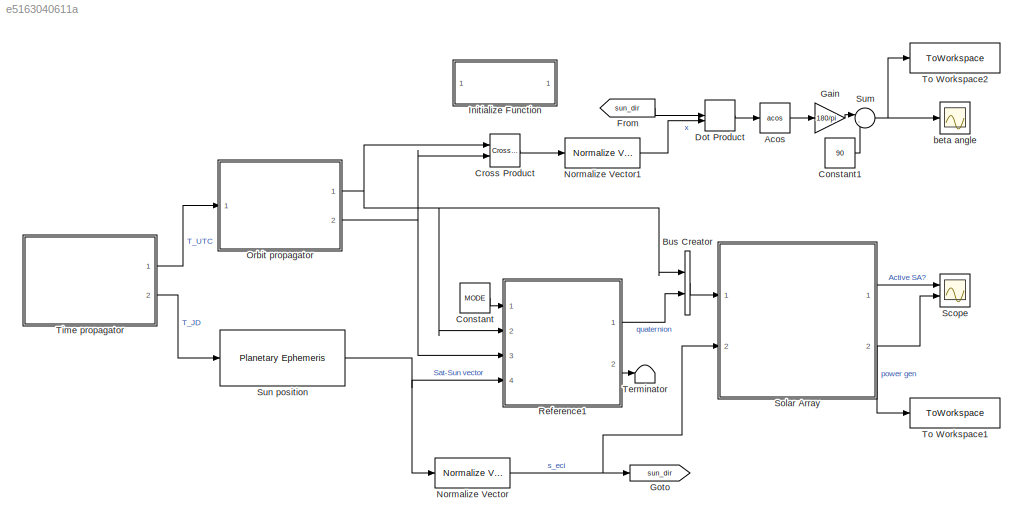
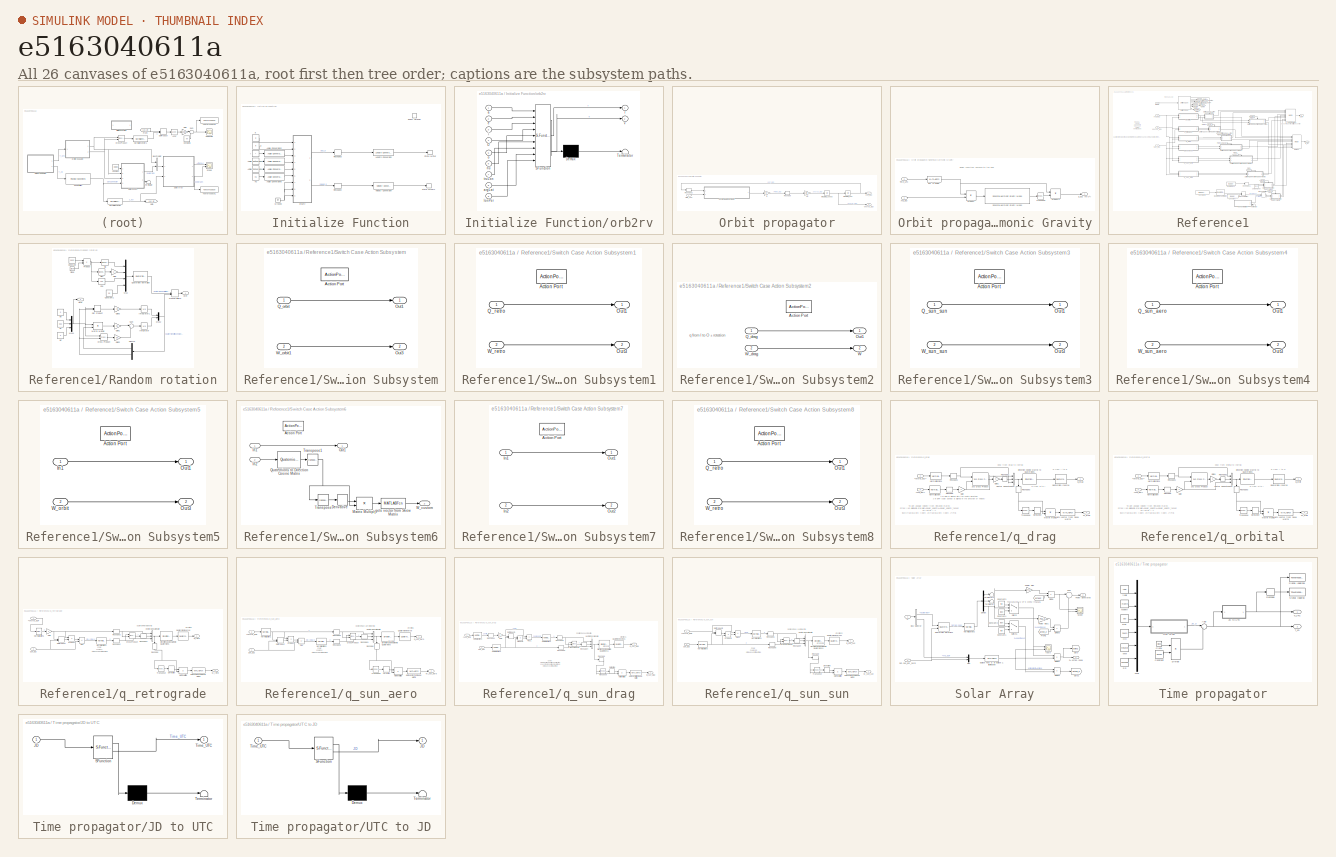
[diagram: thumbnail index - all 26 canvases of the model, root first then tree order]
MODEL slx_e5163040611a
KIND model
CONFIG AbsTol = auto
CONFIG EnableMultiTasking = off
CONFIG FixedStep = delta_t
CONFIG MaxStep = auto
CONFIG MinStep = auto
CONFIG RelTol = 1e-3
CONFIG SampleTimeConstraint = Unconstrained
CONFIG Solver = FixedStepAuto
CONFIG SolverName = FixedStepAuto
CONFIG StartTime = 0.0
CONFIG StopTime = tsimulation
BLOCK [Trigonometry] Acos
  Operator = acos
  Ports = [1, 1]
BLOCK [BusCreator] Bus Creator
  DisplayOption = bar
  InheritFromInputs = on
  Inputs = 2
  Ports = [2, 1]
BLOCK [Constant] Constant
  OutDataTypeStr = int8
  Value = MODE
BLOCK [Constant] Constant1
  Value = 90
BLOCK [Reference] Cross Product  REF=vrlib/Utilities/Cross Product
  Ports = [2, 1]
  SourceBlock = vrlib/Utilities/Cross Product
  SourceProductBaseCode = SL
  SourceType = Cross Product
BLOCK [DotProduct] Dot Product
  OutDataTypeStr = Inherit: Inherit via internal rule
BLOCK [From] From
  GotoTag = sun_dir
BLOCK [Gain] Gain
  Gain = 180/pi
BLOCK [Goto] Goto
  GotoTag = sun_dir
BLOCK [SubSystem] Initialize Function
  Ports = []
  RequestExecContextInheritance = off
  TreatAsAtomicUnit = on
BLOCK [Reference] Initialize Function/Angle Conversion2  REF=aerolibconvert2/Angle Conversion
  Ports = [1, 1]
  SourceBlock = aerolibconvert2/Angle Conversion
  SourceProductBaseCode = AE
  SourceType = Angle Conversion
BLOCK [Reference] Initialize Function/Angle Conversion3  REF=aerolibconvert2/Angle Conversion
  Ports = [1, 1]
  SourceBlock = aerolibconvert2/Angle Conversion
  SourceProductBaseCode = AE
  SourceType = Angle Conversion
BLOCK [Reference] Initialize Function/Angle Conversion4  REF=aerolibconvert2/Angle Conversion
  Ports = [1, 1]
  SourceBlock = aerolibconvert2/Angle Conversion
  SourceProductBaseCode = AE
  SourceType = Angle Conversion
BLOCK [Reference] Initialize Function/Angle Conversion5  REF=aerolibconvert2/Angle Conversion
  Ports = [1, 1]
  SourceBlock = aerolibconvert2/Angle Conversion
  SourceProductBaseCode = AE
  SourceType = Angle Conversion
BLOCK [EventListener] Initialize Function/Event Listener
  DisableCoverage = on
  EventName = reset
BLOCK [Ground] Initialize Function/Ground
BLOCK [Reference] Initialize Function/Length Conversion  REF=aerolibconvert2/Length Conversion
  Ports = [1, 1]
  SourceBlock = aerolibconvert2/Length Conversion
  SourceProductBaseCode = AE
  SourceType = Length Conversion
BLOCK [Constant] Initialize Function/O
  Value = O
BLOCK [Reshape] Initialize Function/Reshape2
  OutputDimensionality = Column vector (2-D)
  Ports = [1, 1]
BLOCK [Reshape] Initialize Function/Reshape3
  OutputDimensionality = Column vector (2-D)
  Ports = [1, 1]
BLOCK [StateWriter] Initialize Function/State Writer
  StateOwnerBlock = ../../Orbit propagator/Integrator_pos
BLOCK [StateWriter] Initialize Function/State Writer1
  StateOwnerBlock = ../../Orbit propagator/Integrator_speed
BLOCK [Reference] Initialize Function/Velocity Conversion  REF=aerolibconvert2/Velocity Conversion
  Ports = [1, 1]
  SourceBlock = aerolibconvert2/Velocity Conversion
  SourceProductBaseCode = AE
  SourceType = Velocity Conversion
BLOCK [Constant] Initialize Function/a
  Value = a
BLOCK [Constant] Initialize Function/e
  Value = e
BLOCK [Constant] Initialize Function/i
  Value = i
BLOCK [Constant] Initialize Function/nu
  Value = nu
BLOCK [Constant] Initialize Function/o
  Value = o
BLOCK [SubSystem] Initialize Function/orb2rv
  ErrorFcn = Stateflow.Translate.translate
  PermitHierarchicalResolution = ExplicitOnly
  Ports = [9, 2]
  RequestExecContextInheritance = off
  SFBlockType = MATLAB Function
  TreatAsAtomicUnit = on
BLOCK [Demux] Initialize Function/orb2rv/ Demux 
  Outputs = 1
  Ports = [1, 1]
BLOCK [S-Function] Initialize Function/orb2rv/ SFunction 
  EnableBusSupport = on
  FunctionName = sf_sfun
  PortCounts = [9 3]
  Ports = [9, 3]
  SFcnIsStateOwnerBlock = off
  SFunctionDeploymentMode = off
  Tag = Stateflow S-Function EPS_orbit_v2a_2019 5
BLOCK [Terminator] Initialize Function/orb2rv/ Terminator 
BLOCK [Inport] Initialize Function/orb2rv/O
  Port = 4
BLOCK [Inport] Initialize Function/orb2rv/a
BLOCK [Inport] Initialize Function/orb2rv/argLat
  Port = 8
BLOCK [Inport] Initialize Function/orb2rv/e
  Port = 2
BLOCK [Inport] Initialize Function/orb2rv/i
  Port = 3
BLOCK [Inport] Initialize Function/orb2rv/lonPer
  Port = 9
BLOCK [Inport] Initialize Function/orb2rv/nu
  Port = 6
BLOCK [Inport] Initialize Function/orb2rv/o
  Port = 5
BLOCK [Outport] Initialize Function/orb2rv/r
  VectorParamsAs1DForOutWhenUnconnected = off
BLOCK [Inport] Initialize Function/orb2rv/truLon
  Port = 7
BLOCK [Outport] Initialize Function/orb2rv/v
  Port = 2
  VectorParamsAs1DForOutWhenUnconnected = off
BLOCK [Reference] Normalize Vector  REF=vrlib/Utilities/Normalize Vector
  Ports = [1, 1]
  SourceBlock = vrlib/Utilities/Normalize Vector
  SourceProductBaseCode = SL
  SourceType = Normalize Vector
BLOCK [Reference] Normalize Vector1  REF=vrlib/Utilities/Normalize Vector
  Ports = [1, 1]
  SourceBlock = vrlib/Utilities/Normalize Vector
  SourceProductBaseCode = SL
  SourceType = Normalize Vector
BLOCK [SubSystem] Orbit propagator
  Ports = [1, 2]
  RequestExecContextInheritance = off
BLOCK [Gain] Orbit propagator/1//m
  Gain = 1/m
BLOCK [Integrator] Orbit propagator/Integrator_pos
  Ports = [1, 1]
BLOCK [Integrator] Orbit propagator/Integrator_speed
  Ports = [1, 1]
BLOCK [Reshape] Orbit propagator/Reshape
  OutputDimensionality = Column vector (2-D)
  Ports = [1, 1]
BLOCK [Reshape] Orbit propagator/Reshape2
  OutputDimensionality = Column vector (2-D)
  Ports = [1, 1]
BLOCK [SubSystem] Orbit propagator/Spherical Harmonic Gravity
  Ports = [2, 1]
  RequestExecContextInheritance = off
  SystemSampleTime = 1
  TreatAsAtomicUnit = on
BLOCK [MATLABFcn] Orbit propagator/Spherical Harmonic Gravity/ECI to ECEF
  MATLABFcn = eci2ecef
  Output1D = off
  OutputDimensions = [3;3]
  Ports = [1, 1]
BLOCK [Product] Orbit propagator/Spherical Harmonic Gravity/Product
  Multiplication = Matrix(*)
  Ports = [2, 1]
BLOCK [Product] Orbit propagator/Spherical Harmonic Gravity/Product1
  Inputs = /*
  Multiplication = Matrix(*)
  Ports = [2, 1]
BLOCK [Reference] Orbit propagator/Spherical Harmonic Gravity/Spherical Harmonic Gravity Model  REF=aerolibgravity2/Spherical Harmonic Gravity Model
  Ports = [1, 1]
  SourceBlock = aerolibgravity2/Spherical Harmonic Gravity Model
  SourceProductBaseCode = AE
  SourceType = Spherical Harmonic Gravity Model
BLOCK [Inport] Orbit propagator/Spherical Harmonic Gravity/Time_UTC
  Port = 2
BLOCK [Math] Orbit propagator/Spherical Harmonic Gravity/Transpose
  Operator = transpose
  Ports = [1, 1]
BLOCK [Inport] Orbit propagator/Spherical Harmonic Gravity/XYZ_ECI
BLOCK [Outport] Orbit propagator/Spherical Harmonic Gravity/g_ECI (m//s²)
BLOCK [Inport] Orbit propagator/Time_UTC 
BLOCK [Outport] Orbit propagator/VxVyVz_ECI
  Port = 2
BLOCK [Outport] Orbit propagator/XYZ_ECI
  VectorParamsAs1DForOutWhenUnconnected = off
BLOCK [Gain] Orbit propagator/m
  Gain = m
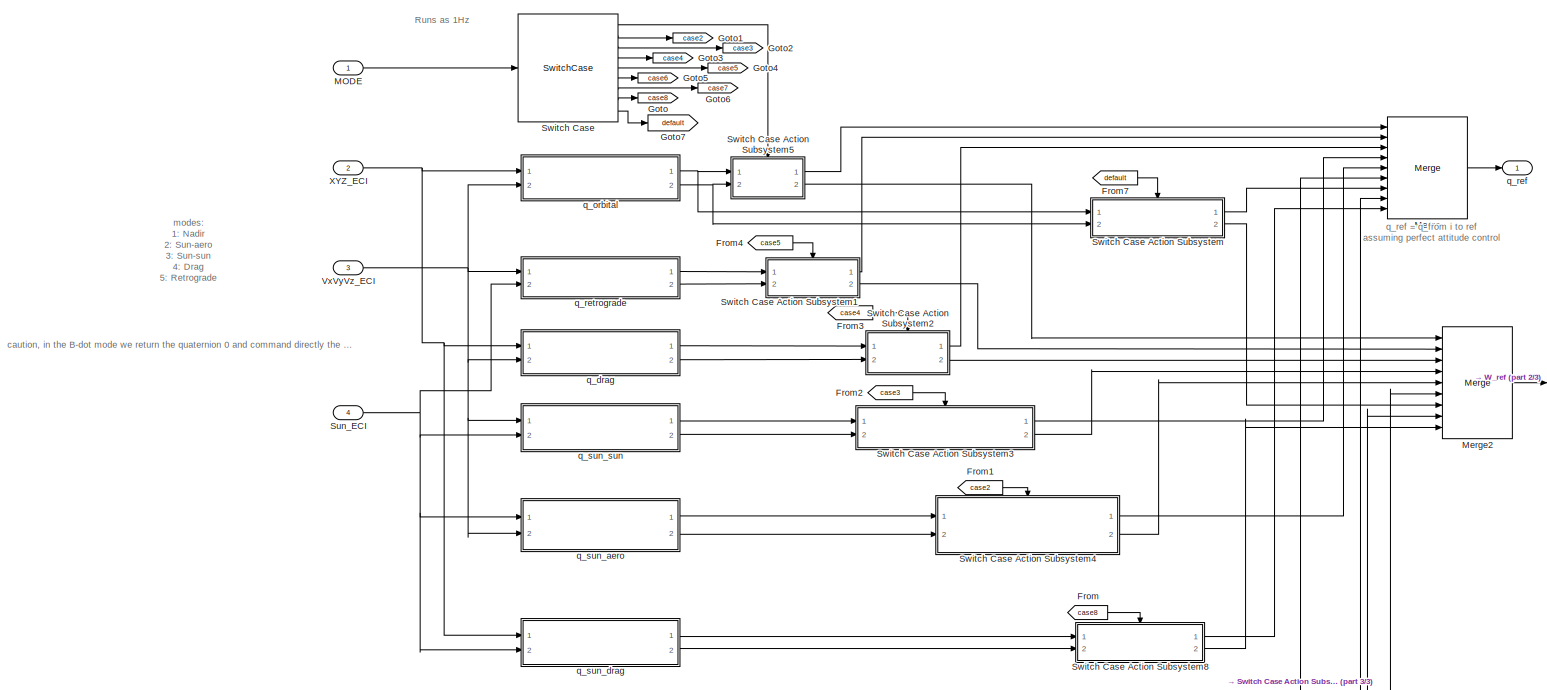
[diagram: Reference1 - part 1/3, full width, middle band]
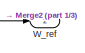
[diagram: Reference1 - part 2/3, middle right region]
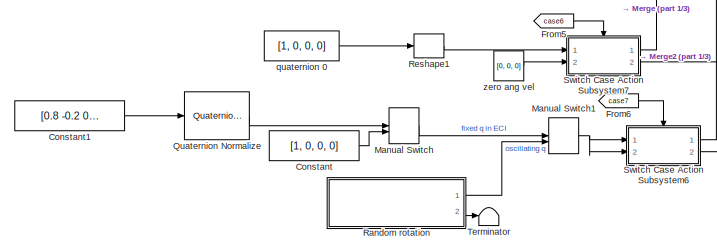
[diagram: Reference1 - part 3/3, bottom center region]
BLOCK [SubSystem] Reference1
  Ports = [4, 2]
  RequestExecContextInheritance = off
  TreatAsAtomicUnit = on
BLOCK [Constant] Reference1/Constant
  Value = [1, 0, 0, 0]
BLOCK [Constant] Reference1/Constant1
  Value = [0.8 -0.2 0.1 0.5]'
BLOCK [From] Reference1/From
  GotoTag = case8
BLOCK [From] Reference1/From1
  GotoTag = case2
BLOCK [From] Reference1/From2
  GotoTag = case3
BLOCK [From] Reference1/From3
  GotoTag = case4
BLOCK [From] Reference1/From4
  GotoTag = case5
BLOCK [From] Reference1/From5
  GotoTag = case6
BLOCK [From] Reference1/From6
  GotoTag = case7
BLOCK [From] Reference1/From7
  GotoTag = default
BLOCK [Goto] Reference1/Goto
  GotoTag = case8
BLOCK [Goto] Reference1/Goto1
  GotoTag = case2
BLOCK [Goto] Reference1/Goto2
  GotoTag = case3
BLOCK [Goto] Reference1/Goto3
  GotoTag = case4
BLOCK [Goto] Reference1/Goto4
  GotoTag = case5
BLOCK [Goto] Reference1/Goto5
  GotoTag = case6
BLOCK [Goto] Reference1/Goto6
  GotoTag = case7
BLOCK [Goto] Reference1/Goto7
  GotoTag = default
BLOCK [Inport] Reference1/MODE
  OutDataTypeStr = int8
  OutMax = 100
  OutMin = 1
BLOCK [ManualSwitch] Reference1/Manual Switch
BLOCK [ManualSwitch] Reference1/Manual Switch1
BLOCK [Merge] Reference1/Merge
  Inputs = 9
  Ports = [9, 1]
BLOCK [Merge] Reference1/Merge2
  Inputs = 9
  Ports = [9, 1]
BLOCK [Reference] Reference1/Quaternion Normalize  REF=sharedutil/Quaternion
Normalize
  Ports = [1, 1]
  SourceBlock = sharedutil/Quaternion\nNormalize
  SourceProductBaseCode = AE,PW,MT,UV,VE,VP
  SourceType = Quaternion Normalize
BLOCK [SubSystem] Reference1/Random rotation
  Ports = [0, 2]
  RequestExecContextInheritance = off
BLOCK [Clock] Reference1/Random rotation/Clock
  Decimation = delta_t
BLOCK [Constant] Reference1/Random rotation/Constant
  Value = 0.002
BLOCK [Constant] Reference1/Random rotation/Constant1
  Value = 0.2
BLOCK [Trigonometry] Reference1/Random rotation/Cos
  Operator = cos
  Ports = [1, 1]
BLOCK [Reference] Reference1/Random rotation/Cross Product  REF=vrlib/Utilities/Cross Product
  Ports = [2, 1]
  SourceBlock = vrlib/Utilities/Cross Product
  SourceProductBaseCode = SL
  SourceType = Cross Product
BLOCK [Demux] Reference1/Random rotation/Demux
  Outputs = [1;3]
  Ports = [1, 2]
BLOCK [DotProduct] Reference1/Random rotation/Dot Product
  OutDataTypeStr = Inherit: Inherit via internal rule
BLOCK [Gain] Reference1/Random rotation/Gain
  Gain = 2
BLOCK [Gain] Reference1/Random rotation/Gain1
  Gain = 0.5
BLOCK [Gain] Reference1/Random rotation/Gain2
  Gain = 0.5
BLOCK [Gain] Reference1/Random rotation/Gain3
  Gain = -0.5
BLOCK [Integrator] Reference1/Random rotation/Integrator
  InitialCondition = [0;0;0]
  Ports = [1, 1]
BLOCK [Integrator] Reference1/Random rotation/Integrator1
  InitialCondition = 1
  Ports = [1, 1]
BLOCK [ManualSwitch] Reference1/Random rotation/Manual Switch
BLOCK [Product] Reference1/Random rotation/Matrix Multiply
  Multiplication = Matrix(*)
  Ports = [2, 1]
BLOCK [Mux] Reference1/Random rotation/Mux
  DisplayOption = bar
  Ports = [4, 1]
BLOCK [Mux] Reference1/Random rotation/Mux1
  DisplayOption = bar
  Inputs = 3
  Ports = [3, 1]
BLOCK [Mux] Reference1/Random rotation/Mux2
  DisplayOption = bar
  Inputs = [1;3]
  Ports = [2, 1]
BLOCK [Product] Reference1/Random rotation/Product
  Ports = [2, 1]
BLOCK [Reference] Reference1/Random rotation/Quaternion Normalize  REF=sharedutil/Quaternion
Normalize
  Ports = [1, 1]
  SourceBlock = sharedutil/Quaternion\nNormalize
  SourceProductBaseCode = AE,PW,MT,UV,VE,VP
  SourceType = Quaternion Normalize
BLOCK [Trigonometry] Reference1/Random rotation/Sin
  Ports = [1, 1]
BLOCK [Trigonometry] Reference1/Random rotation/Sin1
  Ports = [1, 1]
BLOCK [Sum] Reference1/Random rotation/Sum
  Inputs = |+-
  Ports = [2, 1]
BLOCK [Outport] Reference1/Random rotation/qref
BLOCK [Outport] Reference1/Random rotation/wref
  Port = 2
BLOCK [Constant] Reference1/Random rotation/wx
  Value = 0
BLOCK [Constant] Reference1/Random rotation/wy
  Value = 0.02
BLOCK [Constant] Reference1/Random rotation/wz
  Value = 0
BLOCK [Reshape] Reference1/Reshape1
  OutputDimensionality = Column vector (2-D)
  Ports = [1, 1]
BLOCK [Inport] Reference1/Sun_ECI
  Port = 4
BLOCK [SwitchCase] Reference1/Switch Case
  CaseConditions = {1, 2, 3, 4, 5, 6, 7, 8}
  Ports = [1, 9]
BLOCK [SubSystem] Reference1/Switch Case Action Subsystem
  Ports = [2, 2, 0, 0, 0, 0, 0, 1]
  RequestExecContextInheritance = off
  TreatAsAtomicUnit = on
BLOCK [ActionPort] Reference1/Switch Case Action Subsystem/Action Port
BLOCK [Outport] Reference1/Switch Case Action Subsystem/Out1
  VectorParamsAs1DForOutWhenUnconnected = off
BLOCK [Outport] Reference1/Switch Case Action Subsystem/Out3
  Port = 2
  VectorParamsAs1DForOutWhenUnconnected = off
BLOCK [Inport] Reference1/Switch Case Action Subsystem/Q_orbit
BLOCK [Inport] Reference1/Switch Case Action Subsystem/W_orbit1
  Port = 2
BLOCK [SubSystem] Reference1/Switch Case Action Subsystem1
  Ports = [2, 2, 0, 0, 0, 0, 0, 1]
  RequestExecContextInheritance = off
  TreatAsAtomicUnit = on
BLOCK [ActionPort] Reference1/Switch Case Action Subsystem1/Action Port
BLOCK [Outport] Reference1/Switch Case Action Subsystem1/Out1
  VectorParamsAs1DForOutWhenUnconnected = off
BLOCK [Outport] Reference1/Switch Case Action Subsystem1/Out3
  Port = 2
  VectorParamsAs1DForOutWhenUnconnected = off
BLOCK [Inport] Reference1/Switch Case Action Subsystem1/Q_retro
BLOCK [Inport] Reference1/Switch Case Action Subsystem1/W_retro
  Port = 2
BLOCK [SubSystem] Reference1/Switch Case Action Subsystem2
  Ports = [2, 2, 0, 0, 0, 0, 0, 1]
  RequestExecContextInheritance = off
  TreatAsAtomicUnit = on
BLOCK [ActionPort] Reference1/Switch Case Action Subsystem2/Action Port
BLOCK [Outport] Reference1/Switch Case Action Subsystem2/Out1
  VectorParamsAs1DForOutWhenUnconnected = off
BLOCK [Inport] Reference1/Switch Case Action Subsystem2/Q_drag
BLOCK [Outport] Reference1/Switch Case Action Subsystem2/W
  Port = 2
BLOCK [Inport] Reference1/Switch Case Action Subsystem2/W_drag
  Port = 2
BLOCK [SubSystem] Reference1/Switch Case Action Subsystem3
  Ports = [2, 2, 0, 0, 0, 0, 0, 1]
  RequestExecContextInheritance = off
  TreatAsAtomicUnit = on
BLOCK [ActionPort] Reference1/Switch Case Action Subsystem3/Action Port
BLOCK [Outport] Reference1/Switch Case Action Subsystem3/Out1
  VectorParamsAs1DForOutWhenUnconnected = off
BLOCK [Outport] Reference1/Switch Case Action Subsystem3/Out3
  Port = 2
  VectorParamsAs1DForOutWhenUnconnected = off
BLOCK [Inport] Reference1/Switch Case Action Subsystem3/Q_sun_sun
BLOCK [Inport] Reference1/Switch Case Action Subsystem3/W_sun_sun
  Port = 2
BLOCK [SubSystem] Reference1/Switch Case Action Subsystem4
  Ports = [2, 2, 0, 0, 0, 0, 0, 1]
  RequestExecContextInheritance = off
  TreatAsAtomicUnit = on
BLOCK [ActionPort] Reference1/Switch Case Action Subsystem4/Action Port
BLOCK [Outport] Reference1/Switch Case Action Subsystem4/Out1
  VectorParamsAs1DForOutWhenUnconnected = off
BLOCK [Outport] Reference1/Switch Case Action Subsystem4/Out3
  Port = 2
  VectorParamsAs1DForOutWhenUnconnected = off
BLOCK [Inport] Reference1/Switch Case Action Subsystem4/Q_sun_aero
BLOCK [Inport] Reference1/Switch Case Action Subsystem4/W_sun_aero
  Port = 2
BLOCK [SubSystem] Reference1/Switch Case Action Subsystem5
  Ports = [2, 2, 0, 0, 0, 0, 0, 1]
  RequestExecContextInheritance = off
  TreatAsAtomicUnit = on
BLOCK [ActionPort] Reference1/Switch Case Action Subsystem5/Action Port
BLOCK [Inport] Reference1/Switch Case Action Subsystem5/In1
BLOCK [Outport] Reference1/Switch Case Action Subsystem5/Out1
  VectorParamsAs1DForOutWhenUnconnected = off
BLOCK [Outport] Reference1/Switch Case Action Subsystem5/Out3
  Port = 2
  VectorParamsAs1DForOutWhenUnconnected = off
BLOCK [Inport] Reference1/Switch Case Action Subsystem5/W_orbit
  Port = 2
BLOCK [SubSystem] Reference1/Switch Case Action Subsystem6
  Ports = [2, 2, 0, 0, 0, 0, 0, 1]
  RequestExecContextInheritance = off
  TreatAsAtomicUnit = on
BLOCK [ActionPort] Reference1/Switch Case Action Subsystem6/Action Port
BLOCK [Derivative] Reference1/Switch Case Action Subsystem6/Derivative
BLOCK [Inport] Reference1/Switch Case Action Subsystem6/In1
BLOCK [Inport] Reference1/Switch Case Action Subsystem6/In2
  Port = 2
BLOCK [Product] Reference1/Switch Case Action Subsystem6/Matrix Multiply
  Multiplication = Matrix(*)
  Ports = [2, 1]
BLOCK [Outport] Reference1/Switch Case Action Subsystem6/Out1
  VectorParamsAs1DForOutWhenUnconnected = off
BLOCK [Reference] Reference1/Switch Case Action Subsystem6/Quaternions to Direction Cosine Matrix  REF=sharedtransform/Quaternions to 
Direction Cosine Matrix
  Ports = [1, 1]
  SourceBlock = sharedtransform/Quaternions to \nDirection Cosine Matrix
  SourceProductBaseCode = AE,PW,MT,UV,VE,VP
  SourceType = Quaternion2DCM
BLOCK [Math] Reference1/Switch Case Action Subsystem6/Transpose
  Operator = transpose
  Ports = [1, 1]
BLOCK [Math] Reference1/Switch Case Action Subsystem6/Transpose1
  Operator = transpose
  Ports = [1, 1]
BLOCK [Outport] Reference1/Switch Case Action Subsystem6/W_custom
  Port = 2
BLOCK [MATLABFcn] Reference1/Switch Case Action Subsystem6/gets vector from Skew Matrix
  MATLABFcn = vec_from_skew
  Ports = [1, 1]
BLOCK [SubSystem] Reference1/Switch Case Action Subsystem7
  Ports = [2, 2, 0, 0, 0, 0, 0, 1]
  RequestExecContextInheritance = off
  TreatAsAtomicUnit = on
BLOCK [ActionPort] Reference1/Switch Case Action Subsystem7/Action Port
BLOCK [Inport] Reference1/Switch Case Action Subsystem7/In1
BLOCK [Inport] Reference1/Switch Case Action Subsystem7/In2
  Port = 2
BLOCK [Outport] Reference1/Switch Case Action Subsystem7/Out1
  VectorParamsAs1DForOutWhenUnconnected = off
BLOCK [Outport] Reference1/Switch Case Action Subsystem7/Out2
  Port = 2
  VectorParamsAs1DForOutWhenUnconnected = off
BLOCK [SubSystem] Reference1/Switch Case Action Subsystem8
  Ports = [2, 2, 0, 0, 0, 0, 0, 1]
  RequestExecContextInheritance = off
  TreatAsAtomicUnit = on
BLOCK [ActionPort] Reference1/Switch Case Action Subsystem8/Action Port
BLOCK [Outport] Reference1/Switch Case Action Subsystem8/Out1
  VectorParamsAs1DForOutWhenUnconnected = off
BLOCK [Outport] Reference1/Switch Case Action Subsystem8/Out3
  Port = 2
  VectorParamsAs1DForOutWhenUnconnected = off
BLOCK [Inport] Reference1/Switch Case Action Subsystem8/Q_retro
BLOCK [Inport] Reference1/Switch Case Action Subsystem8/W_retro
  Port = 2
BLOCK [Terminator] Reference1/Terminator
BLOCK [Inport] Reference1/VxVyVz_ECI
  Port = 3
BLOCK [Outport] Reference1/W_ref
  Port = 2
BLOCK [Inport] Reference1/XYZ_ECI
  Port = 2
BLOCK [SubSystem] Reference1/q_drag
  Ports = [2, 2]
  RequestExecContextInheritance = off
BLOCK [Reference] Reference1/q_drag/3x3 Cross Product  REF=sharedutil/3x3 Cross Product
  Ports = [2, 1]
  SourceBlock = sharedutil/3x3 Cross Product
  SourceProductBaseCode = AE,PW,MT,UV,VE,VP
  SourceType = CrossProduct
BLOCK [Inport] Reference1/q_drag/<VxVyVz_ECI>
  Port = 2
BLOCK [Inport] Reference1/q_drag/<XYZ_ECI>
BLOCK [Derivative] Reference1/q_drag/Derivative
BLOCK [Reference] Reference1/q_drag/Direction Cosine Matrix to Quaternions  REF=sharedtransform/Direction Cosine Matrix 
to Quaternions
  Ports = [1, 1]
  SourceBlock = sharedtransform/Direction Cosine Matrix \nto Quaternions
  SourceProductBaseCode = AE,PW,MT,UV,VE,VP
  SourceType = DCM2Quaternion
BLOCK [Gain] Reference1/q_drag/Gain
BLOCK [Gain] Reference1/q_drag/Gain1
BLOCK [Product] Reference1/q_drag/Matrix Multiply
  Multiplication = Matrix(*)
  Ports = [2, 1]
BLOCK [Reference] Reference1/q_drag/Normalization  REF=dspmathops/Normalization
  Ports = [1, 1]
  SourceBlock = dspmathops/Normalization
  SourceProductBaseCode = DS
  SourceType = Normalization
BLOCK [Reference] Reference1/q_drag/Normalization1  REF=dspmathops/Normalization
  Ports = [1, 1]
  SourceBlock = dspmathops/Normalization
  SourceProductBaseCode = DS
  SourceType = Normalization
BLOCK [Outport] Reference1/q_drag/Q_drag
  VectorParamsAs1DForOutWhenUnconnected = off
BLOCK [Reference] Reference1/q_drag/Quaternion Inverse  REF=aerolibutil/Quaternion
Inverse
  Ports = [1, 1]
  SourceBlock = aerolibutil/Quaternion\nInverse
  SourceProductBaseCode = AE
  SourceType = Quaternion Inverse
BLOCK [Reshape] Reference1/q_drag/Reshape
  OutputDimensionality = Column vector (2-D)
  Ports = [1, 1]
BLOCK [Reshape] Reference1/q_drag/Reshape1
  OutputDimensionality = Column vector (2-D)
  Ports = [1, 1]
BLOCK [Reshape] Reference1/q_drag/Reshape2
  OutputDimensionality = Column vector (2-D)
  Ports = [1, 1]
BLOCK [Reshape] Reference1/q_drag/Reshape3
  OutputDimensionality = Customize
  OutputDimensions = [3,3]
  Ports = [1, 1]
BLOCK [Math] Reference1/q_drag/Transpose
  Operator = transpose
  Ports = [1, 1]
BLOCK [Concatenate] Reference1/q_drag/Vector Concatenate
  ConcatenateDimension = 2
  Mode = Multidimensional array
  NumInputs = 3
  Ports = [3, 1]
BLOCK [Outport] Reference1/q_drag/W_drag
  Port = 2
BLOCK [MATLABFcn] Reference1/q_drag/gets vector from Skew Matrix
  MATLABFcn = vec_from_skew
  Ports = [1, 1]
BLOCK [SubSystem] Reference1/q_orbital
  Ports = [2, 2]
  RequestExecContextInheritance = off
BLOCK [Reference] Reference1/q_orbital/3x3 Cross Product  REF=sharedutil/3x3 Cross Product
  Ports = [2, 1]
  SourceBlock = sharedutil/3x3 Cross Product
  SourceProductBaseCode = AE,PW,MT,UV,VE,VP
  SourceType = CrossProduct
BLOCK [Inport] Reference1/q_orbital/<VxVyVz_ECI>
  Port = 2
BLOCK [Inport] Reference1/q_orbital/<XYZ_ECI>
BLOCK [Derivative] Reference1/q_orbital/Derivative
BLOCK [Reference] Reference1/q_orbital/Direction Cosine Matrix to Quaternions  REF=sharedtransform/Direction Cosine Matrix 
to Quaternions
  Ports = [1, 1]
  SourceBlock = sharedtransform/Direction Cosine Matrix \nto Quaternions
  SourceProductBaseCode = AE,PW,MT,UV,VE,VP
  SourceType = DCM2Quaternion
BLOCK [Gain] Reference1/q_orbital/Gain
BLOCK [Gain] Reference1/q_orbital/Gain1
  Gain = -1
BLOCK [Product] Reference1/q_orbital/Matrix Multiply
  Multiplication = Matrix(*)
  Ports = [2, 1]
BLOCK [Reference] Reference1/q_orbital/Normalization  REF=dspmathops/Normalization
  Ports = [1, 1]
  SourceBlock = dspmathops/Normalization
  SourceProductBaseCode = DS
  SourceType = Normalization
BLOCK [Reference] Reference1/q_orbital/Normalization1  REF=dspmathops/Normalization
  Ports = [1, 1]
  SourceBlock = dspmathops/Normalization
  SourceProductBaseCode = DS
  SourceType = Normalization
BLOCK [Outport] Reference1/q_orbital/Q_orbit
  VectorParamsAs1DForOutWhenUnconnected = off
BLOCK [Reference] Reference1/q_orbital/Quaternion Inverse  REF=aerolibutil/Quaternion
Inverse
  Ports = [1, 1]
  SourceBlock = aerolibutil/Quaternion\nInverse
  SourceProductBaseCode = AE
  SourceType = Quaternion Inverse
BLOCK [Reshape] Reference1/q_orbital/Reshape
  OutputDimensionality = Column vector (2-D)
  Ports = [1, 1]
BLOCK [Reshape] Reference1/q_orbital/Reshape1
  OutputDimensionality = Column vector (2-D)
  Ports = [1, 1]
BLOCK [Reshape] Reference1/q_orbital/Reshape2
  OutputDimensionality = Column vector (2-D)
  Ports = [1, 1]
BLOCK [Reshape] Reference1/q_orbital/Reshape3
  OutputDimensionality = Customize
  OutputDimensions = [3,3]
  Ports = [1, 1]
BLOCK [Math] Reference1/q_orbital/Transpose
  Operator = transpose
  Ports = [1, 1]
BLOCK [Concatenate] Reference1/q_orbital/Vector Concatenate
  ConcatenateDimension = 2
  Mode = Multidimensional array
  NumInputs = 3
  Ports = [3, 1]
BLOCK [Outport] Reference1/q_orbital/W_orbit
  Port = 2
BLOCK [MATLABFcn] Reference1/q_orbital/gets vector from Skew Matrix
  MATLABFcn = vec_from_skew
  Ports = [1, 1]
BLOCK [Outport] Reference1/q_ref
  VectorParamsAs1DForOutWhenUnconnected = off
BLOCK [SubSystem] Reference1/q_retrograde
  Ports = [2, 2]
  RequestExecContextInheritance = off
BLOCK [Inport] Reference1/q_retrograde/<VxVyVz_ECI>
BLOCK [Reference] Reference1/q_retrograde/Cross Product  REF=vrlib/Utilities/Cross Product
  Ports = [2, 1]
  SourceBlock = vrlib/Utilities/Cross Product
  SourceProductBaseCode = SL
  SourceType = Cross Product
BLOCK [Derivative] Reference1/q_retrograde/Derivative
BLOCK [Reference] Reference1/q_retrograde/Direction Cosine Matrix to Quaternions  REF=sharedtransform/Direction Cosine Matrix 
to Quaternions
  Ports = [1, 1]
  SourceBlock = sharedtransform/Direction Cosine Matrix \nto Quaternions
  SourceProductBaseCode = AE,PW,MT,UV,VE,VP
  SourceType = DCM2Quaternion
BLOCK [DotProduct] Reference1/q_retrograde/Dot Product
  OutDataTypeStr = Inherit: Inherit via internal rule
BLOCK [Gain] Reference1/q_retrograde/Gain
  Gain = -1
BLOCK [Product] Reference1/q_retrograde/Matrix Multiply
  Multiplication = Matrix(*)
  Ports = [2, 1]
BLOCK [Reference] Reference1/q_retrograde/Normalization1  REF=dspmathops/Normalization
  Ports = [1, 1]
  SourceBlock = dspmathops/Normalization
  SourceProductBaseCode = DS
  SourceType = Normalization
BLOCK [Reference] Reference1/q_retrograde/Normalization2  REF=dspmathops/Normalization
  Ports = [1, 1]
  SourceBlock = dspmathops/Normalization
  SourceProductBaseCode = DS
  SourceType = Normalization
BLOCK [Sum] Reference1/q_retrograde/Plus
  IconShape = rectangular
  Inputs = -+
  Ports = [2, 1]
BLOCK [Product] Reference1/q_retrograde/Product
  Ports = [2, 1]
BLOCK [Outport] Reference1/q_retrograde/Q_retro
  VectorParamsAs1DForOutWhenUnconnected = off
BLOCK [Reference] Reference1/q_retrograde/Quaternion Inverse  REF=aerolibutil/Quaternion
Inverse
  Ports = [1, 1]
  SourceBlock = aerolibutil/Quaternion\nInverse
  SourceProductBaseCode = AE
  SourceType = Quaternion Inverse
BLOCK [Reshape] Reference1/q_retrograde/Reshape
  OutputDimensionality = Customize
  OutputDimensions = [3,3]
  Ports = [1, 1]
BLOCK [Reshape] Reference1/q_retrograde/Reshape1
  OutputDimensionality = Column vector (2-D)
  Ports = [1, 1]
BLOCK [Reshape] Reference1/q_retrograde/Reshape2
  OutputDimensionality = Column vector (2-D)
  Ports = [1, 1]
BLOCK [Reshape] Reference1/q_retrograde/Reshape3
  OutputDimensionality = Column vector (2-D)
  Ports = [1, 1]
BLOCK [Inport] Reference1/q_retrograde/Sun_ECI
  Port = 2
BLOCK [Math] Reference1/q_retrograde/Transpose
  Operator = transpose
  Ports = [1, 1]
BLOCK [Concatenate] Reference1/q_retrograde/Vector Concatenate
  ConcatenateDimension = 2
  Mode = Multidimensional array
  NumInputs = 3
  Ports = [3, 1]
BLOCK [Outport] Reference1/q_retrograde/W_retro
  Port = 2
BLOCK [MATLABFcn] Reference1/q_retrograde/gets vector from Skew Matrix
  MATLABFcn = vec_from_skew
  Ports = [1, 1]
BLOCK [SubSystem] Reference1/q_sun_aero
  Ports = [2, 2]
  RequestExecContextInheritance = off
BLOCK [Inport] Reference1/q_sun_aero/<VxVyVz_ECI>
  Port = 2
BLOCK [Reference] Reference1/q_sun_aero/Cross Product  REF=vrlib/Utilities/Cross Product
  Ports = [2, 1]
  SourceBlock = vrlib/Utilities/Cross Product
  SourceProductBaseCode = SL
  SourceType = Cross Product
BLOCK [Derivative] Reference1/q_sun_aero/Derivative
BLOCK [Reference] Reference1/q_sun_aero/Direction Cosine Matrix to Quaternions  REF=sharedtransform/Direction Cosine Matrix 
to Quaternions
  Ports = [1, 1]
  SourceBlock = sharedtransform/Direction Cosine Matrix \nto Quaternions
  SourceProductBaseCode = AE,PW,MT,UV,VE,VP
  SourceType = DCM2Quaternion
BLOCK [DotProduct] Reference1/q_sun_aero/Dot Product
  OutDataTypeStr = Inherit: Inherit via internal rule
BLOCK [Product] Reference1/q_sun_aero/Matrix Multiply
  Multiplication = Matrix(*)
  Ports = [2, 1]
BLOCK [Reference] Reference1/q_sun_aero/Normalization1  REF=dspmathops/Normalization
  Ports = [1, 1]
  SourceBlock = dspmathops/Normalization
  SourceProductBaseCode = DS
  SourceType = Normalization
BLOCK [Reference] Reference1/q_sun_aero/Normalization2  REF=dspmathops/Normalization
  Ports = [1, 1]
  SourceBlock = dspmathops/Normalization
  SourceProductBaseCode = DS
  SourceType = Normalization
BLOCK [Sum] Reference1/q_sun_aero/Plus
  IconShape = rectangular
  Inputs = -+
  Ports = [2, 1]
BLOCK [Product] Reference1/q_sun_aero/Product
  Ports = [2, 1]
BLOCK [Outport] Reference1/q_sun_aero/Q_sun_aero
  VectorParamsAs1DForOutWhenUnconnected = off
BLOCK [Reference] Reference1/q_sun_aero/Quaternion Inverse  REF=aerolibutil/Quaternion
Inverse
  Ports = [1, 1]
  SourceBlock = aerolibutil/Quaternion\nInverse
  SourceProductBaseCode = AE
  SourceType = Quaternion Inverse
BLOCK [Reshape] Reference1/q_sun_aero/Reshape
  OutputDimensionality = Customize
  OutputDimensions = [3,3]
  Ports = [1, 1]
BLOCK [Reshape] Reference1/q_sun_aero/Reshape1
  OutputDimensionality = Column vector (2-D)
  Ports = [1, 1]
BLOCK [Reshape] Reference1/q_sun_aero/Reshape2
  OutputDimensionality = Column vector (2-D)
  Ports = [1, 1]
BLOCK [Reshape] Reference1/q_sun_aero/Reshape3
  OutputDimensionality = Column vector (2-D)
  Ports = [1, 1]
BLOCK [Inport] Reference1/q_sun_aero/Sun_ECI
BLOCK [Math] Reference1/q_sun_aero/Transpose
  Operator = transpose
  Ports = [1, 1]
BLOCK [Concatenate] Reference1/q_sun_aero/Vector Concatenate
  ConcatenateDimension = 2
  Mode = Multidimensional array
  NumInputs = 3
  Ports = [3, 1]
BLOCK [Outport] Reference1/q_sun_aero/W_sun_aero
  Port = 2
BLOCK [MATLABFcn] Reference1/q_sun_aero/gets vector from Skew Matrix
  MATLABFcn = vec_from_skew
  Ports = [1, 1]
BLOCK [SubSystem] Reference1/q_sun_drag
  Ports = [2, 2]
  RequestExecContextInheritance = off
BLOCK [Inport] Reference1/q_sun_drag/<XYZ_ECI>
BLOCK [Reference] Reference1/q_sun_drag/Cross Product1  REF=vrlib/Utilities/Cross Product
  Ports = [2, 1]
  SourceBlock = vrlib/Utilities/Cross Product
  SourceProductBaseCode = SL
  SourceType = Cross Product
BLOCK [Derivative] Reference1/q_sun_drag/Derivative
BLOCK [Reference] Reference1/q_sun_drag/Direction Cosine Matrix to Quaternions1  REF=sharedtransform/Direction Cosine Matrix 
to Quaternions
  Ports = [1, 1]
  SourceBlock = sharedtransform/Direction Cosine Matrix \nto Quaternions
  SourceProductBaseCode = AE,PW,MT,UV,VE,VP
  SourceType = DCM2Quaternion
BLOCK [DotProduct] Reference1/q_sun_drag/Dot Product1
  OutDataTypeStr = Inherit: Inherit via internal rule
BLOCK [Gain] Reference1/q_sun_drag/Gain
  Gain = -1
BLOCK [Product] Reference1/q_sun_drag/Matrix Multiply
  Multiplication = Matrix(*)
  Ports = [2, 1]
BLOCK [Reference] Reference1/q_sun_drag/Normalization1  REF=dspmathops/Normalization
  Ports = [1, 1]
  SourceBlock = dspmathops/Normalization
  SourceProductBaseCode = DS
  SourceType = Normalization
BLOCK [Reference] Reference1/q_sun_drag/Normalization3  REF=dspmathops/Normalization
  Ports = [1, 1]
  SourceBlock = dspmathops/Normalization
  SourceProductBaseCode = DS
  SourceType = Normalization
BLOCK [Reference] Reference1/q_sun_drag/Normalization4  REF=dspmathops/Normalization
  Ports = [1, 1]
  SourceBlock = dspmathops/Normalization
  SourceProductBaseCode = DS
  SourceType = Normalization
BLOCK [Sum] Reference1/q_sun_drag/Plus1
  IconShape = rectangular
  Inputs = -+
  Ports = [2, 1]
BLOCK [Product] Reference1/q_sun_drag/Product1
  Ports = [2, 1]
BLOCK [Outport] Reference1/q_sun_drag/Q_sun_drag
  VectorParamsAs1DForOutWhenUnconnected = off
BLOCK [Reference] Reference1/q_sun_drag/Quaternion Inverse1  REF=aerolibutil/Quaternion
Inverse
  Ports = [1, 1]
  SourceBlock = aerolibutil/Quaternion\nInverse
  SourceProductBaseCode = AE
  SourceType = Quaternion Inverse
BLOCK [Reshape] Reference1/q_sun_drag/Reshape
  OutputDimensionality = Customize
  OutputDimensions = [3,3]
  Ports = [1, 1]
BLOCK [Reshape] Reference1/q_sun_drag/Reshape1
  OutputDimensionality = Column vector (2-D)
  Ports = [1, 1]
BLOCK [Reshape] Reference1/q_sun_drag/Reshape4
  OutputDimensionality = Column vector (2-D)
  Ports = [1, 1]
BLOCK [Reshape] Reference1/q_sun_drag/Reshape5
  OutputDimensionality = Column vector (2-D)
  Ports = [1, 1]
BLOCK [Reshape] Reference1/q_sun_drag/Reshape6
  OutputDimensionality = Column vector (2-D)
  Ports = [1, 1]
BLOCK [Inport] Reference1/q_sun_drag/Sun_ECI
  Port = 2
BLOCK [Math] Reference1/q_sun_drag/Transpose
  Operator = transpose
  Ports = [1, 1]
BLOCK [Concatenate] Reference1/q_sun_drag/Vector Concatenate1
  ConcatenateDimension = 2
  Mode = Multidimensional array
  NumInputs = 3
  Ports = [3, 1]
BLOCK [Outport] Reference1/q_sun_drag/W_sun_drag
  Port = 2
BLOCK [MATLABFcn] Reference1/q_sun_drag/gets vector from Skew Matrix
  MATLABFcn = vec_from_skew
  Ports = [1, 1]
BLOCK [SubSystem] Reference1/q_sun_sun
  Ports = [2, 2]
  RequestExecContextInheritance = off
BLOCK [Inport] Reference1/q_sun_sun/<VxVyVz_ECI>
BLOCK [Reference] Reference1/q_sun_sun/Cross Product1  REF=vrlib/Utilities/Cross Product
  Ports = [2, 1]
  SourceBlock = vrlib/Utilities/Cross Product
  SourceProductBaseCode = SL
  SourceType = Cross Product
BLOCK [Derivative] Reference1/q_sun_sun/Derivative
BLOCK [Reference] Reference1/q_sun_sun/Direction Cosine Matrix to Quaternions1  REF=sharedtransform/Direction Cosine Matrix 
to Quaternions
  Ports = [1, 1]
  SourceBlock = sharedtransform/Direction Cosine Matrix \nto Quaternions
  SourceProductBaseCode = AE,PW,MT,UV,VE,VP
  SourceType = DCM2Quaternion
BLOCK [DotProduct] Reference1/q_sun_sun/Dot Product1
  OutDataTypeStr = Inherit: Inherit via internal rule
BLOCK [Product] Reference1/q_sun_sun/Matrix Multiply
  Multiplication = Matrix(*)
  Ports = [2, 1]
BLOCK [Reference] Reference1/q_sun_sun/Normalization3  REF=dspmathops/Normalization
  Ports = [1, 1]
  SourceBlock = dspmathops/Normalization
  SourceProductBaseCode = DS
  SourceType = Normalization
BLOCK [Reference] Reference1/q_sun_sun/Normalization4  REF=dspmathops/Normalization
  Ports = [1, 1]
  SourceBlock = dspmathops/Normalization
  SourceProductBaseCode = DS
  SourceType = Normalization
BLOCK [Sum] Reference1/q_sun_sun/Plus1
  IconShape = rectangular
  Inputs = -+
  Ports = [2, 1]
BLOCK [Product] Reference1/q_sun_sun/Product1
  Ports = [2, 1]
BLOCK [Outport] Reference1/q_sun_sun/Q_sun_sun
  VectorParamsAs1DForOutWhenUnconnected = off
BLOCK [Reference] Reference1/q_sun_sun/Quaternion Inverse1  REF=aerolibutil/Quaternion
Inverse
  Ports = [1, 1]
  SourceBlock = aerolibutil/Quaternion\nInverse
  SourceProductBaseCode = AE
  SourceType = Quaternion Inverse
BLOCK [Reshape] Reference1/q_sun_sun/Reshape
  OutputDimensionality = Customize
  OutputDimensions = [3,3]
  Ports = [1, 1]
BLOCK [Reshape] Reference1/q_sun_sun/Reshape4
  OutputDimensionality = Column vector (2-D)
  Ports = [1, 1]
BLOCK [Reshape] Reference1/q_sun_sun/Reshape5
  OutputDimensionality = Column vector (2-D)
  Ports = [1, 1]
BLOCK [Reshape] Reference1/q_sun_sun/Reshape6
  OutputDimensionality = Column vector (2-D)
  Ports = [1, 1]
BLOCK [Inport] Reference1/q_sun_sun/Sun_ECI
  Port = 2
BLOCK [Math] Reference1/q_sun_sun/Transpose
  Operator = transpose
  Ports = [1, 1]
BLOCK [Concatenate] Reference1/q_sun_sun/Vector Concatenate1
  ConcatenateDimension = 2
  Mode = Multidimensional array
  NumInputs = 3
  Ports = [3, 1]
BLOCK [Outport] Reference1/q_sun_sun/W_sun_sun
  Port = 2
BLOCK [MATLABFcn] Reference1/q_sun_sun/gets vector from Skew Matrix
  MATLABFcn = vec_from_skew
  Ports = [1, 1]
BLOCK [Constant] Reference1/quaternion 0
  Value = [1, 0, 0, 0]
BLOCK [Constant] Reference1/zero ang vel
  Value = [0, 0, 0]
BLOCK [Scope] Scope
  Floating = off
  NumInputPorts = 2
  Ports = [2]
  ScopeSpecificationString = Simulink.scopes.TimeScopeBlockCfg('CurrentConfiguration', extmgr.ConfigurationSet(extmgr.Configuration('Core','General UI',true),extmgr.Configuration('Core','Source UI',true),extmgr.Configuration('Sources','WiredSimulink',true,'DataLoggingVariableName','ScopeData1'),extmgr.Configuration('Visuals','Time Domain',true,'SerializedDisplays',{struct('MinYLimReal','-0.125','MaxYLimReal','1.125','YLabelRe...<+2131ch>
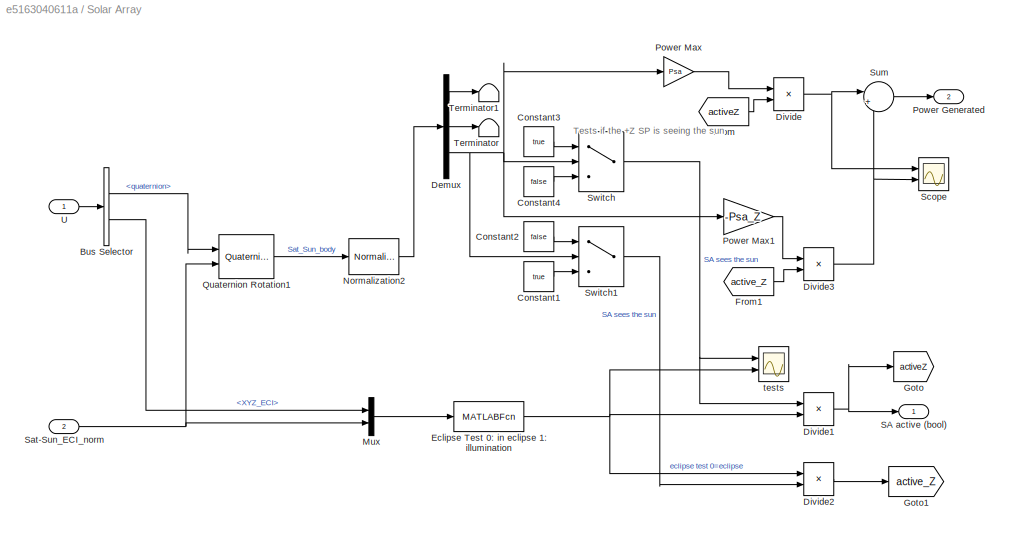
BLOCK [SubSystem] Solar Array
  Ports = [2, 2]
  RequestExecContextInheritance = off
BLOCK [BusSelector] Solar Array/Bus Selector
  OutputSignals = quaternion,XYZ_ECI
  Ports = [1, 2]
BLOCK [Constant] Solar Array/Constant1
  Value = true
BLOCK [Constant] Solar Array/Constant2
  Value = false
BLOCK [Constant] Solar Array/Constant3
  Value = true
BLOCK [Constant] Solar Array/Constant4
  Value = false
BLOCK [Demux] Solar Array/Demux
  Outputs = 3
  Ports = [1, 3]
BLOCK [Product] Solar Array/Divide
  Inputs = **
  Ports = [2, 1]
BLOCK [Product] Solar Array/Divide1
  Inputs = **
  Ports = [2, 1]
BLOCK [Product] Solar Array/Divide2
  Inputs = **
  Ports = [2, 1]
BLOCK [Product] Solar Array/Divide3
  Inputs = **
  Ports = [2, 1]
BLOCK [MATLABFcn] Solar Array/Eclipse Test 0: in eclipse 1: illumination
  MATLABFcn = eclipse_check
  Ports = [1, 1]
BLOCK [From] Solar Array/From
  GotoTag = activeZ
BLOCK [From] Solar Array/From1
  GotoTag = active_Z
BLOCK [Goto] Solar Array/Goto
  GotoTag = activeZ
BLOCK [Goto] Solar Array/Goto1
  GotoTag = active_Z
BLOCK [Mux] Solar Array/Mux
  DisplayOption = bar
  Inputs = 2
  Ports = [2, 1]
BLOCK [Reference] Solar Array/Normalization2  REF=dspmathops/Normalization
  Ports = [1, 1]
  SourceBlock = dspmathops/Normalization
  SourceProductBaseCode = DS
  SourceType = Normalization
BLOCK [Outport] Solar Array/Power Generated
  Port = 2
BLOCK [Gain] Solar Array/Power Max
  Gain = Psa
BLOCK [Gain] Solar Array/Power Max1
  Gain = -Psa_Z
BLOCK [Reference] Solar Array/Quaternion Rotation1  REF=aerolibutil/Quaternion
Rotation
  Ports = [2, 1]
  SourceBlock = aerolibutil/Quaternion\nRotation
  SourceProductBaseCode = AE
  SourceType = Quaternion Rotation
BLOCK [Outport] Solar Array/SA active (bool)
  VectorParamsAs1DForOutWhenUnconnected = off
BLOCK [Inport] Solar Array/Sat-Sun_ECI_norm
  Port = 2
BLOCK [Scope] Solar Array/Scope
  Floating = off
  NumInputPorts = 2
  Ports = [2]
  ScopeSpecificationString = Simulink.scopes.TimeScopeBlockCfg('CurrentConfiguration', extmgr.ConfigurationSet(extmgr.Configuration('Core','General UI',true),extmgr.Configuration('Core','Source UI',true),extmgr.Configuration('Sources','WiredSimulink',true,'DataLoggingVariableName','ScopeData1'),extmgr.Configuration('Visuals','Time Domain',true,'SerializedDisplays',{struct('MinYLimReal','-5.82677','MaxYLimReal','52.44097','YLa...<+1566ch>
BLOCK [Sum] Solar Array/Sum
  Inputs = |++
  Ports = [2, 1]
BLOCK [Switch] Solar Array/Switch
  Criteria = u2 > Threshold
  InputSameDT = off
  SaturateOnIntegerOverflow = off
BLOCK [Switch] Solar Array/Switch1
  Criteria = u2 > Threshold
  InputSameDT = off
  SaturateOnIntegerOverflow = off
BLOCK [Terminator] Solar Array/Terminator
BLOCK [Terminator] Solar Array/Terminator1
BLOCK [Inport] Solar Array/U
BLOCK [Scope] Solar Array/tests
  Floating = off
  NumInputPorts = 2
  Ports = [2]
  ScopeSpecificationString = Simulink.scopes.TimeScopeBlockCfg('CurrentConfiguration', extmgr.ConfigurationSet(extmgr.Configuration('Core','General UI',true),extmgr.Configuration('Core','Source UI',true),extmgr.Configuration('Sources','WiredSimulink',true,'DataLoggingVariableName','ScopeData2'),extmgr.Configuration('Visuals','Time Domain',true,'SerializedDisplays',{struct('MinYLimReal','-0.125','MaxYLimReal','1.125','YLabelRe...<+2108ch>
BLOCK [Sum] Sum
  Inputs = |-+
  Ports = [2, 1]
BLOCK [Reference] Sun position  REF=aerolibcelestial/Planetary Ephemeris
  Ports = [1, 1]
  SourceBlock = aerolibcelestial/Planetary Ephemeris
  SourceProductBaseCode = AE
  SourceType = PlanetaryEphemeris
BLOCK [Terminator] Terminator
BLOCK [SubSystem] Time propagator
  Ports = [0, 2]
  RequestExecContextInheritance = off
BLOCK [Sum] Time propagator/Add
  Inputs = |++
  Ports = [2, 1]
BLOCK [Clock] Time propagator/Clock
BLOCK [Constant] Time propagator/Constant
  Value = 86400
BLOCK [Constant] Time propagator/Day
  Value = day
BLOCK [Product] Time propagator/Divide
  Inputs = */
  Ports = [2, 1]
BLOCK [Constant] Time propagator/HH
  Value = hours
BLOCK [SubSystem] Time propagator/JD to UTC
  ErrorFcn = Stateflow.Translate.translate
  PermitHierarchicalResolution = ExplicitOnly
  Ports = [1, 1]
  RequestExecContextInheritance = off
  SFBlockType = MATLAB Function
  TreatAsAtomicUnit = on
BLOCK [Demux] Time propagator/JD to UTC/ Demux 
  Outputs = 1
  Ports = [1, 1]
BLOCK [S-Function] Time propagator/JD to UTC/ SFunction 
  EnableBusSupport = on
  FunctionName = sf_sfun
  PortCounts = [1 2]
  Ports = [1, 2]
  SFcnIsStateOwnerBlock = off
  SFunctionDeploymentMode = off
  Tag = Stateflow S-Function EPS_orbit_v2a_2019 1
BLOCK [Terminator] Time propagator/JD to UTC/ Terminator 
BLOCK [Inport] Time propagator/JD to UTC/JD
BLOCK [Outport] Time propagator/JD to UTC/Time_UTC
  VectorParamsAs1DForOutWhenUnconnected = off
BLOCK [Constant] Time propagator/MM
  Value = minutes
BLOCK [Constant] Time propagator/Month
  Value = month
BLOCK [Mux] Time propagator/Mux
  DisplayOption = bar
  Inputs = 6
  Ports = [6, 1]
BLOCK [Reshape] Time propagator/Reshape
  Ports = [1, 1]
BLOCK [Constant] Time propagator/SS
  Value = seconds
BLOCK [ToWorkspace] Time propagator/Signal logging
  FixptAsFi = on
  MaxDataPoints = inf
  Ports = [1]
  SampleTime = 1
  Save2DSignal = 2-D array (concatenate along first dimension)
  SaveFormat = Timeseries
  VariableName = T_UTC
BLOCK [ToWorkspace] Time propagator/Signal logging1
  FixptAsFi = on
  MaxDataPoints = inf
  Ports = [1]
  SampleTime = 1
  Save2DSignal = 2-D array (concatenate along first dimension)
  SaveFormat = Timeseries
  VariableName = T_JD
BLOCK [Outport] Time propagator/T_JD
  Port = 2
  VectorParamsAs1DForOutWhenUnconnected = off
BLOCK [Outport] Time propagator/T_UTC
  VectorParamsAs1DForOutWhenUnconnected = off
BLOCK [SubSystem] Time propagator/UTC to JD
  ErrorFcn = Stateflow.Translate.translate
  PermitHierarchicalResolution = ExplicitOnly
  Ports = [1, 1]
  RequestExecContextInheritance = off
  SFBlockType = MATLAB Function
  TreatAsAtomicUnit = on
BLOCK [Demux] Time propagator/UTC to JD/ Demux 
  Outputs = 1
  Ports = [1, 1]
BLOCK [S-Function] Time propagator/UTC to JD/ SFunction 
  EnableBusSupport = on
  FunctionName = sf_sfun
  PortCounts = [1 2]
  Ports = [1, 2]
  SFcnIsStateOwnerBlock = off
  SFunctionDeploymentMode = off
  Tag = Stateflow S-Function EPS_orbit_v2a_2019 2
BLOCK [Terminator] Time propagator/UTC to JD/ Terminator 
BLOCK [Outport] Time propagator/UTC to JD/JD
  VectorParamsAs1DForOutWhenUnconnected = off
BLOCK [Inport] Time propagator/UTC to JD/Time_UTC
BLOCK [Constant] Time propagator/Year
  Value = year
BLOCK [ToWorkspace] To Workspace1
  FixptAsFi = on
  MaxDataPoints = inf
  Ports = [1]
  SampleTime = -1
  SaveFormat = Timeseries
  VariableName = Psa1
BLOCK [ToWorkspace] To Workspace2
  FixptAsFi = on
  MaxDataPoints = inf
  Ports = [1]
  SampleTime = -1
  SaveFormat = Timeseries
  VariableName = beta
BLOCK [Scope] beta angle
  Floating = off
  NumInputPorts = 1
  Ports = [1]
  ScopeSpecificationString = Simulink.scopes.TimeScopeBlockCfg('CurrentConfiguration', extmgr.ConfigurationSet(extmgr.Configuration('Core','General UI',true),extmgr.Configuration('Core','Source UI',true),extmgr.Configuration('Sources','WiredSimulink',true,'DataLoggingVariableName','ScopeData2'),extmgr.Configuration('Visuals','Time Domain',true,'SerializedDisplays',{struct('MinYLimReal','0','MaxYLimReal','90','YLabelReal','','...<+1422ch>
ANNOTATION Orbit propagator/Spherical Harmonic Gravity: Slower subsytem because it's too slow
ANNOTATION Reference1: caution, in the B-dot mode we return the quaternion 0 and command directly the magnetotorquers
ANNOTATION Reference1: modes : 1: Nadir 2: Sun-aero 3: Sun-sun 4: Drag 5: Retrograde 6: B-dot 7: Custom Default: nadir
ANNOTATION Reference1: Runs as 1Hz
ANNOTATION Reference1: q_ref = q_from i to ref assuming perfect attitude control
ANNOTATION Reference1/Switch Case Action Subsystem2: q from I to O + rotation
ANNOTATION Reference1/q_drag: To get angular velocity from Rotation matrix: https://en.wikipedia.org/wiki/Angular_velocity#Angular_velocity_tensor W= dA/dt * A' $W=\frac{dA}{dt} {\dot} A'=\frac{dA}{dt} {\dot} A^{T}$
ANNOTATION Reference1/q_drag: DCM from Drag to Inertial
ANNOTATION Reference1/q_drag: q from D to I
ANNOTATION Reference1/q_drag: q from I to D
ANNOTATION Reference1/q_drag: x in BRF is aligned with the zenith direction z in BRF (solar panels) is aligned in the direction of velocity
ANNOTATION Reference1/q_orbital: To get angular velocity from Rotation matrix: https://en.wikipedia.org/wiki/Angular_velocity#Angular_velocity_tensor W= dA/dt * A' $W=\frac{dA}{dt} {\dot} A'=\frac{dA}{dt} {\dot} A^{T}$
ANNOTATION Reference1/q_orbital: DCM from Orbital to Inertial
ANNOTATION Reference1/q_orbital: q from I to O
ANNOTATION Reference1/q_orbital: q from O to I
ANNOTATION Reference1/q_retrograde: choix : x selon V z tel que z.GS soit maximisé
ANNOTATION Reference1/q_retrograde: DCM from Retro to Inertial
ANNOTATION Reference1/q_retrograde: q from I to R
ANNOTATION Reference1/q_retrograde: q from R to I
ANNOTATION Reference1/q_sun_aero: choix : x selon V z tel que z.GS soit maximisé
ANNOTATION Reference1/q_sun_aero: DCM from Sun-aero to Inertial
ANNOTATION Reference1/q_sun_aero: q from I to S
ANNOTATION Reference1/q_sun_aero: q from S to I
ANNOTATION Reference1/q_sun_drag: Choix: z in BRF aligned with sun direction x such that x.nadir be maximized x tel que x.V soit maximisé
ANNOTATION Reference1/q_sun_drag: DCM from Sun-sun to Inertial
ANNOTATION Reference1/q_sun_drag: q from I to SS
ANNOTATION Reference1/q_sun_drag: q from SS to I
ANNOTATION Reference1/q_sun_sun: Choix: z selon GS x tel que x.V soit maximisé
ANNOTATION Reference1/q_sun_sun: DCM from Sun-sun to Inertial
ANNOTATION Reference1/q_sun_sun: q from I to SS
ANNOTATION Reference1/q_sun_sun: q from SS to I
ANNOTATION Solar Array: Tests if the +Z SP is seeing the sun
LINE Acos:1 -> Gain:1
LINE Bus Creator:1 -> Solar Array:1
LINE Constant1:1 -> Sum:2
LINE Constant:1 -> Reference1:1
LINE Cross Product:1 -> Normalize Vector1:1
LINE Dot Product:1 -> Acos:1
LINE From:1 -> Dot Product:1
LINE Gain:1 -> Sum:1
LINE Initialize Function/Angle Conversion2:1 -> Initialize Function/orb2rv:3
LINE Initialize Function/Angle Conversion3:1 -> Initialize Function/orb2rv:4
LINE Initialize Function/Angle Conversion4:1 -> Initialize Function/orb2rv:5
LINE Initialize Function/Angle Conversion5:1 -> Initialize Function/orb2rv:6
NET Initialize Function/Ground:1 -> Initialize Function/orb2rv:7, Initialize Function/orb2rv:8, Initialize Function/orb2rv:9
LINE Initialize Function/Length Conversion:1 -> Initialize Function/State Writer:1
LINE Initialize Function/O:1 -> Initialize Function/Angle Conversion3:1
LINE Initialize Function/Reshape2:1 -> Initialize Function/Velocity Conversion:1
LINE Initialize Function/Reshape3:1 -> Initialize Function/Length Conversion:1
LINE Initialize Function/Velocity Conversion:1 -> Initialize Function/State Writer1:1
LINE Initialize Function/a:1 -> Initialize Function/orb2rv:1
LINE Initialize Function/e:1 -> Initialize Function/orb2rv:2
LINE Initialize Function/i:1 -> Initialize Function/Angle Conversion2:1
LINE Initialize Function/nu:1 -> Initialize Function/Angle Conversion5:1
LINE Initialize Function/o:1 -> Initialize Function/Angle Conversion4:1
LINE Initialize Function/orb2rv:1 -> Initialize Function/Reshape3:1
LINE Initialize Function/orb2rv:2 -> Initialize Function/Reshape2:1
LINE Normalize Vector1:1 -> Dot Product:2
NET Normalize Vector:1 -> Goto:1, Solar Array:2
LINE Orbit propagator/1//m:1 -> Orbit propagator/Integrator_speed:1
NET Orbit propagator/Integrator_pos:1 -> Orbit propagator/Reshape2:1, Orbit propagator/XYZ_ECI:1
NET Orbit propagator/Integrator_speed:1 -> Orbit propagator/Integrator_pos:1, Orbit propagator/VxVyVz_ECI:1
LINE Orbit propagator/Reshape2:1 -> Orbit propagator/Spherical Harmonic Gravity:1
LINE Orbit propagator/Reshape:1 -> Orbit propagator/1//m:1
NET Orbit propagator/Spherical Harmonic Gravity/ECI to ECEF:1 -> Orbit propagator/Spherical Harmonic Gravity/Product1:1, Orbit propagator/Spherical Harmonic Gravity/Product:1
LINE Orbit propagator/Spherical Harmonic Gravity/Product1:1 -> Orbit propagator/Spherical Harmonic Gravity/g_ECI (m//s²):1
LINE Orbit propagator/Spherical Harmonic Gravity/Product:1 -> Orbit propagator/Spherical Harmonic Gravity/Spherical Harmonic Gravity Model:1
LINE Orbit propagator/Spherical Harmonic Gravity/Spherical Harmonic Gravity Model:1 -> Orbit propagator/Spherical Harmonic Gravity/Transpose:1
LINE Orbit propagator/Spherical Harmonic Gravity/Time_UTC:1 -> Orbit propagator/Spherical Harmonic Gravity/ECI to ECEF:1
LINE Orbit propagator/Spherical Harmonic Gravity/Transpose:1 -> Orbit propagator/Spherical Harmonic Gravity/Product1:2
LINE Orbit propagator/Spherical Harmonic Gravity/XYZ_ECI:1 -> Orbit propagator/Spherical Harmonic Gravity/Product:2
LINE Orbit propagator/Spherical Harmonic Gravity:1 -> Orbit propagator/m:1
LINE Orbit propagator/Time_UTC :1 -> Orbit propagator/Spherical Harmonic Gravity:2
LINE Orbit propagator/m:1 -> Orbit propagator/Reshape:1
NET Orbit propagator:1 -> Bus Creator:1, Cross Product:1, Reference1:2
NET Orbit propagator:2 -> Cross Product:2, Reference1:3
LINE Reference1/Constant1:1 -> Reference1/Quaternion Normalize:1
LINE Reference1/Constant:1 -> Reference1/Manual Switch:2
LINE Reference1/From1:1 -> Reference1/Switch Case Action Subsystem4:ifaction
LINE Reference1/From2:1 -> Reference1/Switch Case Action Subsystem3:ifaction
LINE Reference1/From3:1 -> Reference1/Switch Case Action Subsystem2:ifaction
LINE Reference1/From4:1 -> Reference1/Switch Case Action Subsystem1:ifaction
LINE Reference1/From5:1 -> Reference1/Switch Case Action Subsystem7:ifaction
LINE Reference1/From6:1 -> Reference1/Switch Case Action Subsystem6:ifaction
LINE Reference1/From7:1 -> Reference1/Switch Case Action Subsystem:ifaction
LINE Reference1/From:1 -> Reference1/Switch Case Action Subsystem8:ifaction
LINE Reference1/MODE:1 -> Reference1/Switch Case:1
NET Reference1/Manual Switch1:1 -> Reference1/Switch Case Action Subsystem6:1, Reference1/Switch Case Action Subsystem6:2
LINE Reference1/Manual Switch:1 -> Reference1/Manual Switch1:1
LINE Reference1/Merge2:1 -> Reference1/W_ref:1
LINE Reference1/Merge:1 -> Reference1/q_ref:1
LINE Reference1/Quaternion Normalize:1 -> Reference1/Manual Switch:1
LINE Reference1/Random rotation/Clock:1 -> Reference1/Random rotation/Product:2
LINE Reference1/Random rotation/Constant1:1 -> Reference1/Random rotation/Mux:4
LINE Reference1/Random rotation/Constant:1 -> Reference1/Random rotation/Product:1
LINE Reference1/Random rotation/Cos:1 -> Reference1/Random rotation/Mux:3
LINE Reference1/Random rotation/Cross Product:1 -> Reference1/Random rotation/Gain2:1
LINE Reference1/Random rotation/Demux:1 -> Reference1/Random rotation/Matrix Multiply:2
NET Reference1/Random rotation/Demux:2 -> Reference1/Random rotation/Cross Product:2, Reference1/Random rotation/Dot Product:2
LINE Reference1/Random rotation/Dot Product:1 -> Reference1/Random rotation/Gain3:1
LINE Reference1/Random rotation/Gain1:1 -> Reference1/Random rotation/Sum:1
LINE Reference1/Random rotation/Gain2:1 -> Reference1/Random rotation/Sum:2
LINE Reference1/Random rotation/Gain3:1 -> Reference1/Random rotation/Integrator1:1
LINE Reference1/Random rotation/Gain:1 -> Reference1/Random rotation/Mux:2
LINE Reference1/Random rotation/Integrator1:1 -> Reference1/Random rotation/Mux2:1
LINE Reference1/Random rotation/Integrator:1 -> Reference1/Random rotation/Mux2:2
LINE Reference1/Random rotation/Manual Switch:1 -> Reference1/Random rotation/qref:1
LINE Reference1/Random rotation/Matrix Multiply:1 -> Reference1/Random rotation/Gain1:1
NET Reference1/Random rotation/Mux1:1 -> Reference1/Random rotation/Cross Product:1, Reference1/Random rotation/Dot Product:1, Reference1/Random rotation/Matrix Multiply:1, Reference1/Random rotation/wref:1
NET Reference1/Random rotation/Mux2:1 -> Reference1/Random rotation/Demux:1, Reference1/Random rotation/Manual Switch:2
LINE Reference1/Random rotation/Mux:1 -> Reference1/Random rotation/Quaternion Normalize:1
NET Reference1/Random rotation/Product:1 -> Reference1/Random rotation/Cos:1, Reference1/Random rotation/Sin1:1, Reference1/Random rotation/Sin:1
LINE Reference1/Random rotation/Quaternion Normalize:1 -> Reference1/Random rotation/Manual Switch:1
LINE Reference1/Random rotation/Sin1:1 -> Reference1/Random rotation/Gain:1
LINE Reference1/Random rotation/Sin:1 -> Reference1/Random rotation/Mux:1
LINE Reference1/Random rotation/Sum:1 -> Reference1/Random rotation/Integrator:1
LINE Reference1/Random rotation/wx:1 -> Reference1/Random rotation/Mux1:1
LINE Reference1/Random rotation/wy:1 -> Reference1/Random rotation/Mux1:2
LINE Reference1/Random rotation/wz:1 -> Reference1/Random rotation/Mux1:3
LINE Reference1/Random rotation:1 -> Reference1/Manual Switch1:2
LINE Reference1/Random rotation:2 -> Reference1/Terminator:1
LINE Reference1/Reshape1:1 -> Reference1/Switch Case Action Subsystem7:1
NET Reference1/Sun_ECI:1 -> Reference1/q_retrograde:2, Reference1/q_sun_aero:1, Reference1/q_sun_drag:2, Reference1/q_sun_sun:2
LINE Reference1/Switch Case Action Subsystem/Q_orbit:1 -> Reference1/Switch Case Action Subsystem/Out1:1
LINE Reference1/Switch Case Action Subsystem/W_orbit1:1 -> Reference1/Switch Case Action Subsystem/Out3:1
LINE Reference1/Switch Case Action Subsystem1/Q_retro:1 -> Reference1/Switch Case Action Subsystem1/Out1:1
LINE Reference1/Switch Case Action Subsystem1/W_retro:1 -> Reference1/Switch Case Action Subsystem1/Out3:1
LINE Reference1/Switch Case Action Subsystem1:1 -> Reference1/Merge:2
LINE Reference1/Switch Case Action Subsystem1:2 -> Reference1/Merge2:2
LINE Reference1/Switch Case Action Subsystem2/Q_drag:1 -> Reference1/Switch Case Action Subsystem2/Out1:1
LINE Reference1/Switch Case Action Subsystem2/W_drag:1 -> Reference1/Switch Case Action Subsystem2/W:1
LINE Reference1/Switch Case Action Subsystem2:1 -> Reference1/Merge:3
LINE Reference1/Switch Case Action Subsystem2:2 -> Reference1/Merge2:3
LINE Reference1/Switch Case Action Subsystem3/Q_sun_sun:1 -> Reference1/Switch Case Action Subsystem3/Out1:1
LINE Reference1/Switch Case Action Subsystem3/W_sun_sun:1 -> Reference1/Switch Case Action Subsystem3/Out3:1
LINE Reference1/Switch Case Action Subsystem3:1 -> Reference1/Merge:4
LINE Reference1/Switch Case Action Subsystem3:2 -> Reference1/Merge2:4
LINE Reference1/Switch Case Action Subsystem4/Q_sun_aero:1 -> Reference1/Switch Case Action Subsystem4/Out1:1
LINE Reference1/Switch Case Action Subsystem4/W_sun_aero:1 -> Reference1/Switch Case Action Subsystem4/Out3:1
LINE Reference1/Switch Case Action Subsystem4:1 -> Reference1/Merge:5
LINE Reference1/Switch Case Action Subsystem4:2 -> Reference1/Merge2:5
LINE Reference1/Switch Case Action Subsystem5/In1:1 -> Reference1/Switch Case Action Subsystem5/Out1:1
LINE Reference1/Switch Case Action Subsystem5/W_orbit:1 -> Reference1/Switch Case Action Subsystem5/Out3:1
LINE Reference1/Switch Case Action Subsystem5:1 -> Reference1/Merge:1
LINE Reference1/Switch Case Action Subsystem5:2 -> Reference1/Merge2:1
LINE Reference1/Switch Case Action Subsystem6/Derivative:1 -> Reference1/Switch Case Action Subsystem6/Matrix Multiply:1
LINE Reference1/Switch Case Action Subsystem6/In1:1 -> Reference1/Switch Case Action Subsystem6/Out1:1
LINE Reference1/Switch Case Action Subsystem6/In2:1 -> Reference1/Switch Case Action Subsystem6/Quaternions to Direction Cosine Matrix:1
LINE Reference1/Switch Case Action Subsystem6/Matrix Multiply:1 -> Reference1/Switch Case Action Subsystem6/gets vector from Skew Matrix:1
LINE Reference1/Switch Case Action Subsystem6/Quaternions to Direction Cosine Matrix:1 -> Reference1/Switch Case Action Subsystem6/Transpose1:1
NET Reference1/Switch Case Action Subsystem6/Transpose1:1 -> Reference1/Switch Case Action Subsystem6/Matrix Multiply:2, Reference1/Switch Case Action Subsystem6/Transpose:1
LINE Reference1/Switch Case Action Subsystem6/Transpose:1 -> Reference1/Switch Case Action Subsystem6/Derivative:1
LINE Reference1/Switch Case Action Subsystem6/gets vector from Skew Matrix:1 -> Reference1/Switch Case Action Subsystem6/W_custom:1
LINE Reference1/Switch Case Action Subsystem6:1 -> Reference1/Merge:8
LINE Reference1/Switch Case Action Subsystem6:2 -> Reference1/Merge2:8
LINE Reference1/Switch Case Action Subsystem7/In1:1 -> Reference1/Switch Case Action Subsystem7/Out1:1
LINE Reference1/Switch Case Action Subsystem7/In2:1 -> Reference1/Switch Case Action Subsystem7/Out2:1
LINE Reference1/Switch Case Action Subsystem7:1 -> Reference1/Merge:6
LINE Reference1/Switch Case Action Subsystem7:2 -> Reference1/Merge2:6
LINE Reference1/Switch Case Action Subsystem8/Q_retro:1 -> Reference1/Switch Case Action Subsystem8/Out1:1
LINE Reference1/Switch Case Action Subsystem8/W_retro:1 -> Reference1/Switch Case Action Subsystem8/Out3:1
LINE Reference1/Switch Case Action Subsystem8:1 -> Reference1/Merge:9
LINE Reference1/Switch Case Action Subsystem8:2 -> Reference1/Merge2:9
LINE Reference1/Switch Case Action Subsystem:1 -> Reference1/Merge:7
LINE Reference1/Switch Case Action Subsystem:2 -> Reference1/Merge2:7
LINE Reference1/Switch Case:1 -> Reference1/Switch Case Action Subsystem5:ifaction
LINE Reference1/Switch Case:2 -> Reference1/Goto1:1
LINE Reference1/Switch Case:3 -> Reference1/Goto2:1
LINE Reference1/Switch Case:4 -> Reference1/Goto3:1
LINE Reference1/Switch Case:5 -> Reference1/Goto4:1
LINE Reference1/Switch Case:6 -> Reference1/Goto5:1
LINE Reference1/Switch Case:7 -> Reference1/Goto6:1
LINE Reference1/Switch Case:8 -> Reference1/Goto:1
LINE Reference1/Switch Case:9 -> Reference1/Goto7:1
NET Reference1/VxVyVz_ECI:1 -> Reference1/q_drag:2, Reference1/q_orbital:2, Reference1/q_retrograde:1, Reference1/q_sun_aero:2, Reference1/q_sun_sun:1
NET Reference1/XYZ_ECI:1 -> Reference1/q_drag:1, Reference1/q_orbital:1, Reference1/q_sun_drag:1
LINE Reference1/q_drag/3x3 Cross Product:1 -> Reference1/q_drag/Gain1:1
LINE Reference1/q_drag/<VxVyVz_ECI>:1 -> Reference1/q_drag/Normalization1:1
LINE Reference1/q_drag/<XYZ_ECI>:1 -> Reference1/q_drag/Normalization:1
LINE Reference1/q_drag/Derivative:1 -> Reference1/q_drag/Matrix Multiply:1
LINE Reference1/q_drag/Direction Cosine Matrix to Quaternions:1 -> Reference1/q_drag/Quaternion Inverse:1
LINE Reference1/q_drag/Gain1:1 -> Reference1/q_drag/Reshape2:1
NET Reference1/q_drag/Gain:1 -> Reference1/q_drag/3x3 Cross Product:2, Reference1/q_drag/Vector Concatenate:1
LINE Reference1/q_drag/Matrix Multiply:1 -> Reference1/q_drag/gets vector from Skew Matrix:1
LINE Reference1/q_drag/Normalization1:1 -> Reference1/q_drag/Reshape1:1
LINE Reference1/q_drag/Normalization:1 -> Reference1/q_drag/Reshape:1
LINE Reference1/q_drag/Quaternion Inverse:1 -> Reference1/q_drag/Q_drag:1
NET Reference1/q_drag/Reshape1:1 -> Reference1/q_drag/3x3 Cross Product:1, Reference1/q_drag/Vector Concatenate:3
LINE Reference1/q_drag/Reshape2:1 -> Reference1/q_drag/Vector Concatenate:2
NET Reference1/q_drag/Reshape3:1 -> Reference1/q_drag/Matrix Multiply:2, Reference1/q_drag/Transpose:1
LINE Reference1/q_drag/Reshape:1 -> Reference1/q_drag/Gain:1
LINE Reference1/q_drag/Transpose:1 -> Reference1/q_drag/Derivative:1
NET Reference1/q_drag/Vector Concatenate:1 -> Reference1/q_drag/Direction Cosine Matrix to Quaternions:1, Reference1/q_drag/Reshape3:1
LINE Reference1/q_drag/gets vector from Skew Matrix:1 -> Reference1/q_drag/W_drag:1
LINE Reference1/q_drag:1 -> Reference1/Switch Case Action Subsystem2:1
LINE Reference1/q_drag:2 -> Reference1/Switch Case Action Subsystem2:2
LINE Reference1/q_orbital/3x3 Cross Product:1 -> Reference1/q_orbital/Gain1:1
LINE Reference1/q_orbital/<VxVyVz_ECI>:1 -> Reference1/q_orbital/Normalization1:1
LINE Reference1/q_orbital/<XYZ_ECI>:1 -> Reference1/q_orbital/Normalization:1
LINE Reference1/q_orbital/Derivative:1 -> Reference1/q_orbital/Matrix Multiply:1
LINE Reference1/q_orbital/Direction Cosine Matrix to Quaternions:1 -> Reference1/q_orbital/Quaternion Inverse:1
LINE Reference1/q_orbital/Gain1:1 -> Reference1/q_orbital/Reshape2:1
NET Reference1/q_orbital/Gain:1 -> Reference1/q_orbital/3x3 Cross Product:2, Reference1/q_orbital/Vector Concatenate:3
LINE Reference1/q_orbital/Matrix Multiply:1 -> Reference1/q_orbital/gets vector from Skew Matrix:1
LINE Reference1/q_orbital/Normalization1:1 -> Reference1/q_orbital/Reshape1:1
LINE Reference1/q_orbital/Normalization:1 -> Reference1/q_orbital/Reshape:1
LINE Reference1/q_orbital/Quaternion Inverse:1 -> Reference1/q_orbital/Q_orbit:1
NET Reference1/q_orbital/Reshape1:1 -> Reference1/q_orbital/3x3 Cross Product:1, Reference1/q_orbital/Vector Concatenate:1
LINE Reference1/q_orbital/Reshape2:1 -> Reference1/q_orbital/Vector Concatenate:2
NET Reference1/q_orbital/Reshape3:1 -> Reference1/q_orbital/Matrix Multiply:2, Reference1/q_orbital/Transpose:1
LINE Reference1/q_orbital/Reshape:1 -> Reference1/q_orbital/Gain:1
LINE Reference1/q_orbital/Transpose:1 -> Reference1/q_orbital/Derivative:1
NET Reference1/q_orbital/Vector Concatenate:1 -> Reference1/q_orbital/Direction Cosine Matrix to Quaternions:1, Reference1/q_orbital/Reshape3:1
LINE Reference1/q_orbital/gets vector from Skew Matrix:1 -> Reference1/q_orbital/W_orbit:1
NET Reference1/q_orbital:1 -> Reference1/Switch Case Action Subsystem5:1, Reference1/Switch Case Action Subsystem:1
NET Reference1/q_orbital:2 -> Reference1/Switch Case Action Subsystem5:2, Reference1/Switch Case Action Subsystem:2
LINE Reference1/q_retrograde/<VxVyVz_ECI>:1 -> Reference1/q_retrograde/Normalization1:1
LINE Reference1/q_retrograde/Cross Product:1 -> Reference1/q_retrograde/Reshape1:1
LINE Reference1/q_retrograde/Derivative:1 -> Reference1/q_retrograde/Matrix Multiply:1
LINE Reference1/q_retrograde/Direction Cosine Matrix to Quaternions:1 -> Reference1/q_retrograde/Quaternion Inverse:1
LINE Reference1/q_retrograde/Dot Product:1 -> Reference1/q_retrograde/Product:2
NET Reference1/q_retrograde/Gain:1 -> Reference1/q_retrograde/Dot Product:1, Reference1/q_retrograde/Product:1, Reference1/q_retrograde/Reshape3:1
LINE Reference1/q_retrograde/Matrix Multiply:1 -> Reference1/q_retrograde/gets vector from Skew Matrix:1
LINE Reference1/q_retrograde/Normalization1:1 -> Reference1/q_retrograde/Gain:1
LINE Reference1/q_retrograde/Normalization2:1 -> Reference1/q_retrograde/Reshape2:1
LINE Reference1/q_retrograde/Plus:1 -> Reference1/q_retrograde/Normalization2:1
LINE Reference1/q_retrograde/Product:1 -> Reference1/q_retrograde/Plus:1
LINE Reference1/q_retrograde/Quaternion Inverse:1 -> Reference1/q_retrograde/Q_retro:1
LINE Reference1/q_retrograde/Reshape1:1 -> Reference1/q_retrograde/Vector Concatenate:2
NET Reference1/q_retrograde/Reshape2:1 -> Reference1/q_retrograde/Cross Product:1, Reference1/q_retrograde/Vector Concatenate:3
NET Reference1/q_retrograde/Reshape3:1 -> Reference1/q_retrograde/Cross Product:2, Reference1/q_retrograde/Vector Concatenate:1
NET Reference1/q_retrograde/Reshape:1 -> Reference1/q_retrograde/Matrix Multiply:2, Reference1/q_retrograde/Transpose:1
NET Reference1/q_retrograde/Sun_ECI:1 -> Reference1/q_retrograde/Dot Product:2, Reference1/q_retrograde/Plus:2
LINE Reference1/q_retrograde/Transpose:1 -> Reference1/q_retrograde/Derivative:1
NET Reference1/q_retrograde/Vector Concatenate:1 -> Reference1/q_retrograde/Direction Cosine Matrix to Quaternions:1, Reference1/q_retrograde/Reshape:1
LINE Reference1/q_retrograde/gets vector from Skew Matrix:1 -> Reference1/q_retrograde/W_retro:1
LINE Reference1/q_retrograde:1 -> Reference1/Switch Case Action Subsystem1:1
LINE Reference1/q_retrograde:2 -> Reference1/Switch Case Action Subsystem1:2
LINE Reference1/q_sun_aero/<VxVyVz_ECI>:1 -> Reference1/q_sun_aero/Normalization1:1
LINE Reference1/q_sun_aero/Cross Product:1 -> Reference1/q_sun_aero/Reshape1:1
LINE Reference1/q_sun_aero/Derivative:1 -> Reference1/q_sun_aero/Matrix Multiply:1
LINE Reference1/q_sun_aero/Direction Cosine Matrix to Quaternions:1 -> Reference1/q_sun_aero/Quaternion Inverse:1
LINE Reference1/q_sun_aero/Dot Product:1 -> Reference1/q_sun_aero/Product:2
LINE Reference1/q_sun_aero/Matrix Multiply:1 -> Reference1/q_sun_aero/gets vector from Skew Matrix:1
NET Reference1/q_sun_aero/Normalization1:1 -> Reference1/q_sun_aero/Dot Product:1, Reference1/q_sun_aero/Product:1, Reference1/q_sun_aero/Reshape3:1
LINE Reference1/q_sun_aero/Normalization2:1 -> Reference1/q_sun_aero/Reshape2:1
LINE Reference1/q_sun_aero/Plus:1 -> Reference1/q_sun_aero/Normalization2:1
LINE Reference1/q_sun_aero/Product:1 -> Reference1/q_sun_aero/Plus:1
LINE Reference1/q_sun_aero/Quaternion Inverse:1 -> Reference1/q_sun_aero/Q_sun_aero:1
LINE Reference1/q_sun_aero/Reshape1:1 -> Reference1/q_sun_aero/Vector Concatenate:2
NET Reference1/q_sun_aero/Reshape2:1 -> Reference1/q_sun_aero/Cross Product:1, Reference1/q_sun_aero/Vector Concatenate:3
NET Reference1/q_sun_aero/Reshape3:1 -> Reference1/q_sun_aero/Cross Product:2, Reference1/q_sun_aero/Vector Concatenate:1
NET Reference1/q_sun_aero/Reshape:1 -> Reference1/q_sun_aero/Matrix Multiply:2, Reference1/q_sun_aero/Transpose:1
NET Reference1/q_sun_aero/Sun_ECI:1 -> Reference1/q_sun_aero/Dot Product:2, Reference1/q_sun_aero/Plus:2
LINE Reference1/q_sun_aero/Transpose:1 -> Reference1/q_sun_aero/Derivative:1
NET Reference1/q_sun_aero/Vector Concatenate:1 -> Reference1/q_sun_aero/Direction Cosine Matrix to Quaternions:1, Reference1/q_sun_aero/Reshape:1
LINE Reference1/q_sun_aero/gets vector from Skew Matrix:1 -> Reference1/q_sun_aero/W_sun_aero:1
LINE Reference1/q_sun_aero:1 -> Reference1/Switch Case Action Subsystem4:1
LINE Reference1/q_sun_aero:2 -> Reference1/Switch Case Action Subsystem4:2
LINE Reference1/q_sun_drag/<XYZ_ECI>:1 -> Reference1/q_sun_drag/Normalization1:1
LINE Reference1/q_sun_drag/Cross Product1:1 -> Reference1/q_sun_drag/Reshape4:1
LINE Reference1/q_sun_drag/Derivative:1 -> Reference1/q_sun_drag/Matrix Multiply:1
LINE Reference1/q_sun_drag/Direction Cosine Matrix to Quaternions1:1 -> Reference1/q_sun_drag/Quaternion Inverse1:1
LINE Reference1/q_sun_drag/Dot Product1:1 -> Reference1/q_sun_drag/Product1:1
NET Reference1/q_sun_drag/Gain:1 -> Reference1/q_sun_drag/Dot Product1:1, Reference1/q_sun_drag/Plus1:1
LINE Reference1/q_sun_drag/Matrix Multiply:1 -> Reference1/q_sun_drag/gets vector from Skew Matrix:1
LINE Reference1/q_sun_drag/Normalization1:1 -> Reference1/q_sun_drag/Reshape1:1
NET Reference1/q_sun_drag/Normalization3:1 -> Reference1/q_sun_drag/Dot Product1:2, Reference1/q_sun_drag/Product1:2, Reference1/q_sun_drag/Reshape6:1
LINE Reference1/q_sun_drag/Normalization4:1 -> Reference1/q_sun_drag/Reshape5:1
LINE Reference1/q_sun_drag/Plus1:1 -> Reference1/q_sun_drag/Normalization4:1
LINE Reference1/q_sun_drag/Product1:1 -> Reference1/q_sun_drag/Plus1:2
LINE Reference1/q_sun_drag/Quaternion Inverse1:1 -> Reference1/q_sun_drag/Q_sun_drag:1
LINE Reference1/q_sun_drag/Reshape1:1 -> Reference1/q_sun_drag/Gain:1
LINE Reference1/q_sun_drag/Reshape4:1 -> Reference1/q_sun_drag/Vector Concatenate1:2
NET Reference1/q_sun_drag/Reshape5:1 -> Reference1/q_sun_drag/Cross Product1:2, Reference1/q_sun_drag/Vector Concatenate1:1
NET Reference1/q_sun_drag/Reshape6:1 -> Reference1/q_sun_drag/Cross Product1:1, Reference1/q_sun_drag/Vector Concatenate1:3
NET Reference1/q_sun_drag/Reshape:1 -> Reference1/q_sun_drag/Matrix Multiply:2, Reference1/q_sun_drag/Transpose:1
LINE Reference1/q_sun_drag/Sun_ECI:1 -> Reference1/q_sun_drag/Normalization3:1
LINE Reference1/q_sun_drag/Transpose:1 -> Reference1/q_sun_drag/Derivative:1
NET Reference1/q_sun_drag/Vector Concatenate1:1 -> Reference1/q_sun_drag/Direction Cosine Matrix to Quaternions1:1, Reference1/q_sun_drag/Reshape:1
LINE Reference1/q_sun_drag/gets vector from Skew Matrix:1 -> Reference1/q_sun_drag/W_sun_drag:1
LINE Reference1/q_sun_drag:1 -> Reference1/Switch Case Action Subsystem8:1
LINE Reference1/q_sun_drag:2 -> Reference1/Switch Case Action Subsystem8:2
NET Reference1/q_sun_sun/<VxVyVz_ECI>:1 -> Reference1/q_sun_sun/Dot Product1:1, Reference1/q_sun_sun/Plus1:1
LINE Reference1/q_sun_sun/Cross Product1:1 -> Reference1/q_sun_sun/Reshape4:1
LINE Reference1/q_sun_sun/Derivative:1 -> Reference1/q_sun_sun/Matrix Multiply:1
LINE Reference1/q_sun_sun/Direction Cosine Matrix to Quaternions1:1 -> Reference1/q_sun_sun/Quaternion Inverse1:1
LINE Reference1/q_sun_sun/Dot Product1:1 -> Reference1/q_sun_sun/Product1:1
LINE Reference1/q_sun_sun/Matrix Multiply:1 -> Reference1/q_sun_sun/gets vector from Skew Matrix:1
NET Reference1/q_sun_sun/Normalization3:1 -> Reference1/q_sun_sun/Dot Product1:2, Reference1/q_sun_sun/Product1:2, Reference1/q_sun_sun/Reshape6:1
LINE Reference1/q_sun_sun/Normalization4:1 -> Reference1/q_sun_sun/Reshape5:1
LINE Reference1/q_sun_sun/Plus1:1 -> Reference1/q_sun_sun/Normalization4:1
LINE Reference1/q_sun_sun/Product1:1 -> Reference1/q_sun_sun/Plus1:2
LINE Reference1/q_sun_sun/Quaternion Inverse1:1 -> Reference1/q_sun_sun/Q_sun_sun:1
LINE Reference1/q_sun_sun/Reshape4:1 -> Reference1/q_sun_sun/Vector Concatenate1:2
NET Reference1/q_sun_sun/Reshape5:1 -> Reference1/q_sun_sun/Cross Product1:2, Reference1/q_sun_sun/Vector Concatenate1:1
NET Reference1/q_sun_sun/Reshape6:1 -> Reference1/q_sun_sun/Cross Product1:1, Reference1/q_sun_sun/Vector Concatenate1:3
NET Reference1/q_sun_sun/Reshape:1 -> Reference1/q_sun_sun/Matrix Multiply:2, Reference1/q_sun_sun/Transpose:1
LINE Reference1/q_sun_sun/Sun_ECI:1 -> Reference1/q_sun_sun/Normalization3:1
LINE Reference1/q_sun_sun/Transpose:1 -> Reference1/q_sun_sun/Derivative:1
NET Reference1/q_sun_sun/Vector Concatenate1:1 -> Reference1/q_sun_sun/Direction Cosine Matrix to Quaternions1:1, Reference1/q_sun_sun/Reshape:1
LINE Reference1/q_sun_sun/gets vector from Skew Matrix:1 -> Reference1/q_sun_sun/W_sun_sun:1
LINE Reference1/q_sun_sun:1 -> Reference1/Switch Case Action Subsystem3:1
LINE Reference1/q_sun_sun:2 -> Reference1/Switch Case Action Subsystem3:2
LINE Reference1/quaternion 0:1 -> Reference1/Reshape1:1
LINE Reference1/zero ang vel:1 -> Reference1/Switch Case Action Subsystem7:2
LINE Reference1:1 -> Bus Creator:2
LINE Reference1:2 -> Terminator:1
LINE Solar Array/Bus Selector:1 -> Solar Array/Quaternion Rotation1:1
LINE Solar Array/Bus Selector:2 -> Solar Array/Mux:1
LINE Solar Array/Constant1:1 -> Solar Array/Switch1:3
LINE Solar Array/Constant2:1 -> Solar Array/Switch1:1
LINE Solar Array/Constant3:1 -> Solar Array/Switch:1
LINE Solar Array/Constant4:1 -> Solar Array/Switch:3
LINE Solar Array/Demux:1 -> Solar Array/Terminator1:1
LINE Solar Array/Demux:2 -> Solar Array/Terminator:1
NET Solar Array/Demux:3 -> Solar Array/Power Max1:1, Solar Array/Power Max:1, Solar Array/Switch1:2, Solar Array/Switch:2
NET Solar Array/Divide1:1 -> Solar Array/Goto:1, Solar Array/SA active (bool):1
LINE Solar Array/Divide2:1 -> Solar Array/Goto1:1
NET Solar Array/Divide3:1 -> Solar Array/Scope:2, Solar Array/Sum:2
NET Solar Array/Divide:1 -> Solar Array/Scope:1, Solar Array/Sum:1
NET Solar Array/Eclipse Test 0: in eclipse 1: illumination:1 -> Solar Array/Divide1:2, Solar Array/Divide2:1, Solar Array/tests:2
LINE Solar Array/From1:1 -> Solar Array/Divide3:2
LINE Solar Array/From:1 -> Solar Array/Divide:2
LINE Solar Array/Mux:1 -> Solar Array/Eclipse Test 0: in eclipse 1: illumination:1
LINE Solar Array/Normalization2:1 -> Solar Array/Demux:1
LINE Solar Array/Power Max1:1 -> Solar Array/Divide3:1
LINE Solar Array/Power Max:1 -> Solar Array/Divide:1
LINE Solar Array/Quaternion Rotation1:1 -> Solar Array/Normalization2:1
NET Solar Array/Sat-Sun_ECI_norm:1 -> Solar Array/Mux:2, Solar Array/Quaternion Rotation1:2
LINE Solar Array/Sum:1 -> Solar Array/Power Generated:1
LINE Solar Array/Switch1:1 -> Solar Array/Divide2:2
NET Solar Array/Switch:1 -> Solar Array/Divide1:1, Solar Array/tests:1
LINE Solar Array/U:1 -> Solar Array/Bus Selector:1
LINE Solar Array:1 -> Scope:1
NET Solar Array:2 -> Scope:2, To Workspace1:1
NET Sum:1 -> To Workspace2:1, beta angle:1
NET Sun position:1 -> Normalize Vector:1, Reference1:4
NET Time propagator/Add:1 -> Time propagator/JD to UTC:1, Time propagator/Signal logging1:1, Time propagator/T_JD:1
LINE Time propagator/Clock:1 -> Time propagator/Divide:1
LINE Time propagator/Constant:1 -> Time propagator/Divide:2
LINE Time propagator/Day:1 -> Time propagator/Mux:3
LINE Time propagator/Divide:1 -> Time propagator/Add:2
LINE Time propagator/HH:1 -> Time propagator/Mux:4
NET Time propagator/JD to UTC:1 -> Time propagator/Reshape:1, Time propagator/T_UTC:1
LINE Time propagator/MM:1 -> Time propagator/Mux:5
LINE Time propagator/Month:1 -> Time propagator/Mux:2
LINE Time propagator/Mux:1 -> Time propagator/UTC to JD:1
LINE Time propagator/Reshape:1 -> Time propagator/Signal logging:1
LINE Time propagator/SS:1 -> Time propagator/Mux:6
LINE Time propagator/UTC to JD:1 -> Time propagator/Add:1
LINE Time propagator/Year:1 -> Time propagator/Mux:1
LINE Time propagator:1 -> Orbit propagator:1
LINE Time propagator:2 -> Sun position:1
note: NET lines group one-source signal fan-out (src -> all destinations, sorted); 1:1 wires keep LINE
CHART Time propagator/JD to UTC states=1 transitions=1
  STATE_LABEL 'eML_blk_kernel()'
  STATE_LABEL "SCRIPT:\nfunction Time_UTC = fcn(JD)\n    coder.extrinsic('datetime','datevec');\n    Time_UTC = [0,0,0,0,0,0];\nTime_UTC =  datevec(datetime(JD,'convertfrom','juliandate'));\n"
CHART Time propagator/UTC to JD states=1 transitions=1
  STATE_LABEL 'eML_blk_kernel()'
  STATE_LABEL 'SCRIPT:\nfunction JD = fcn(Time_UTC)\n\n% JD = juliandate(Time_UTC);\nJD = Dt2jD(Time_UTC);\n'
CHART Initialize Function/orb2rv states=1 transitions=1
  STATE_LABEL 'eML_blk_kernel()'
  STATE_LABEL 'SCRIPT:\n%----------------------- Begin Code Sequence -----------------------------%\n% Purpose:                                                                %\n% Convert a given set of Keplerian Orbital Elements to state vectors in   %\n% in the ECI frame of reference                                           %\n%                                                                         %\n%-----------...<+3608ch>'
